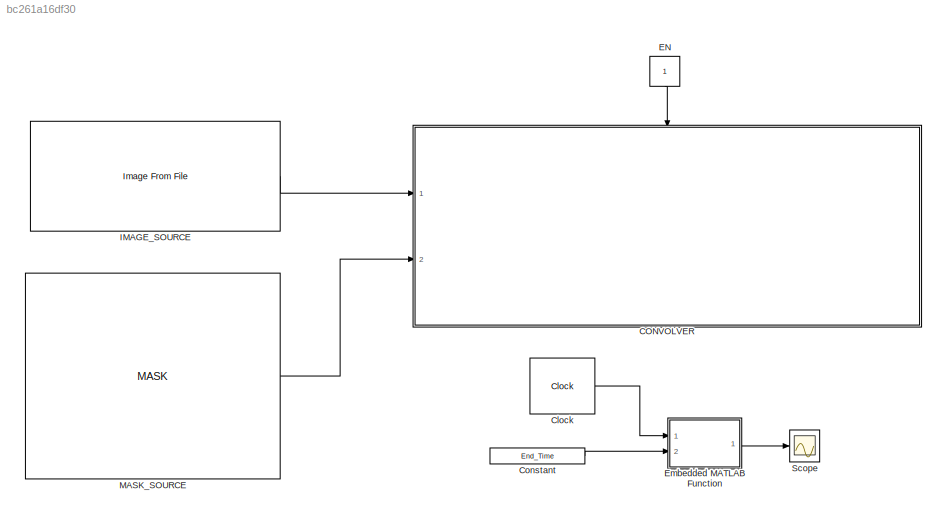
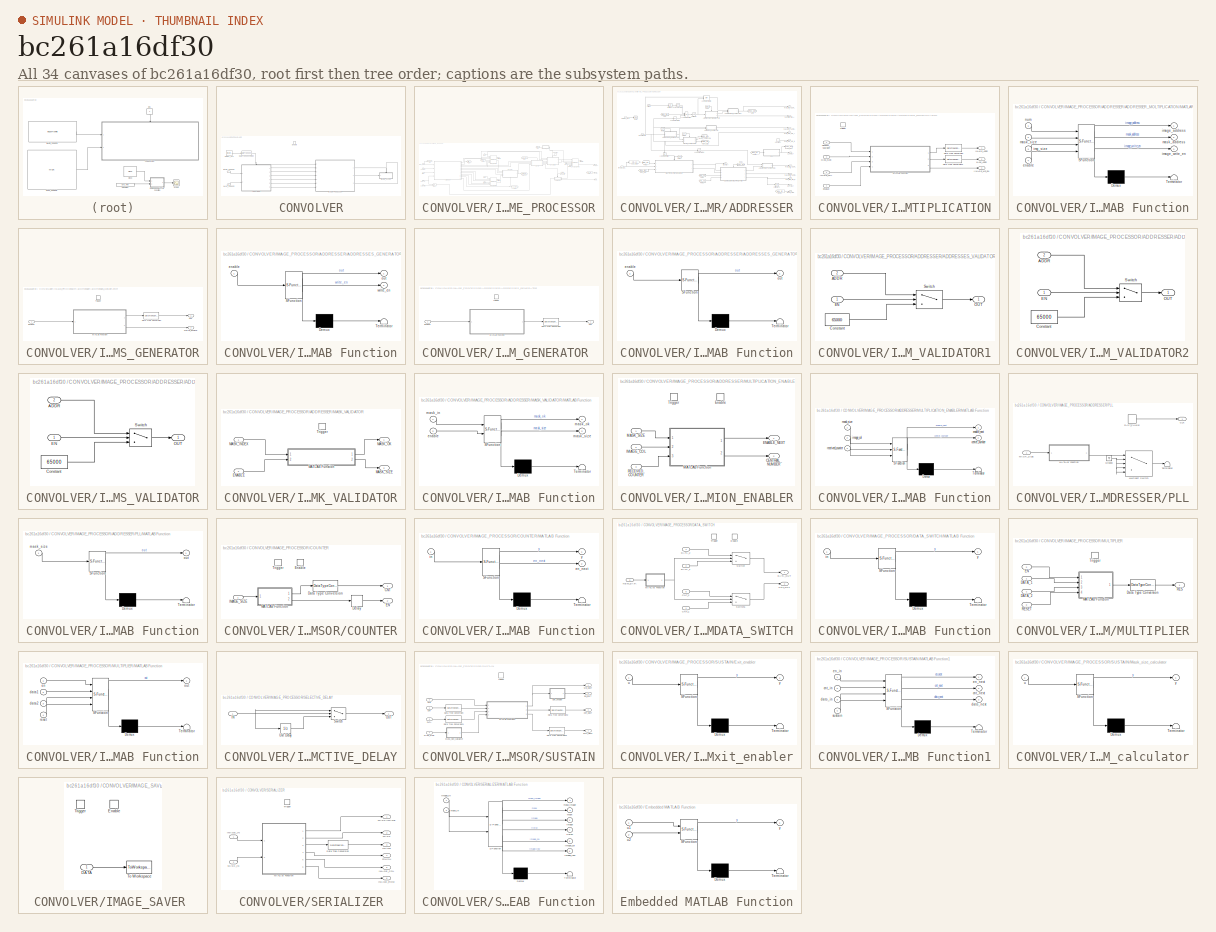
[diagram: thumbnail index - all 34 canvases of the model, root first then tree order]
MODEL slx_bc261a16df30
KIND model
CONFIG AbsTol = auto
CONFIG FixedStep = 1/100
CONFIG MaxStep = auto
CONFIG MinStep = auto
CONFIG RelTol = 1e-3
CONFIG SampleTimeConstraint = Unconstrained
CONFIG Solver = FixedStepDiscrete
CONFIG SolverMode = SingleTasking
CONFIG SolverName = FixedStepDiscrete
CONFIG StartTime = 0.0
CONFIG StopTime = 1500
BLOCK [SubSystem] CONVOLVER
  Ports = [2, 0, 1]
  RequestExecContextInheritance = off
  Variant = off
BLOCK [DataTypeConversion] CONVOLVER/Data Type Conversion
  OutDataTypeStr = boolean
  RndMeth = Floor
  SaturateOnIntegerOverflow = off
BLOCK [EnablePort] CONVOLVER/Enable
  Ports = []
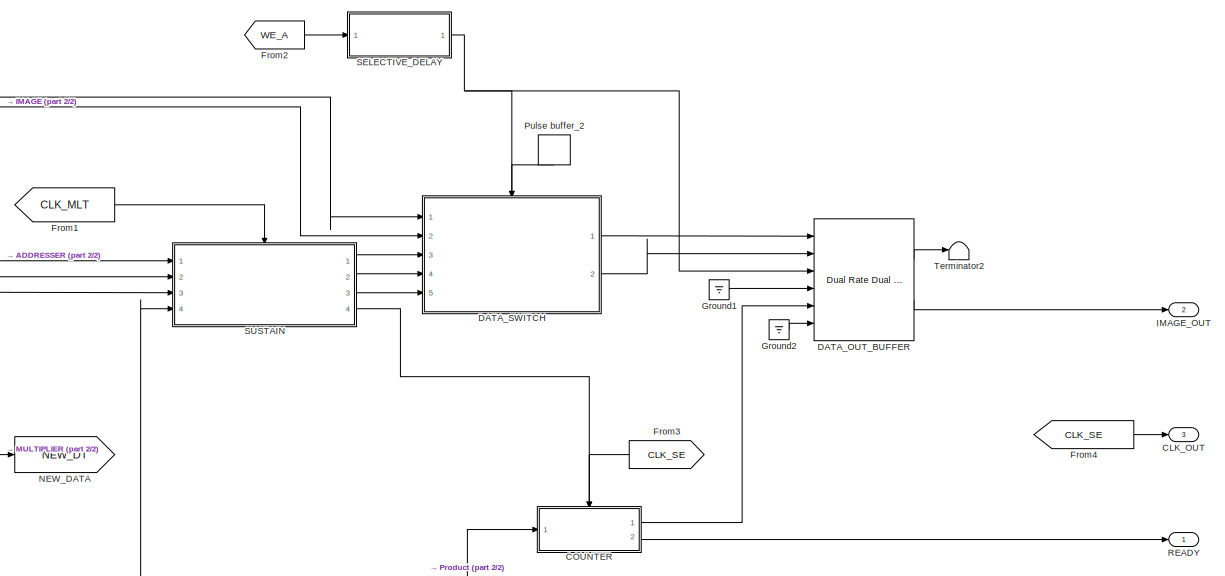
[diagram: CONVOLVER/IMAGE_PROCESSOR - part 1/2, middle right region]
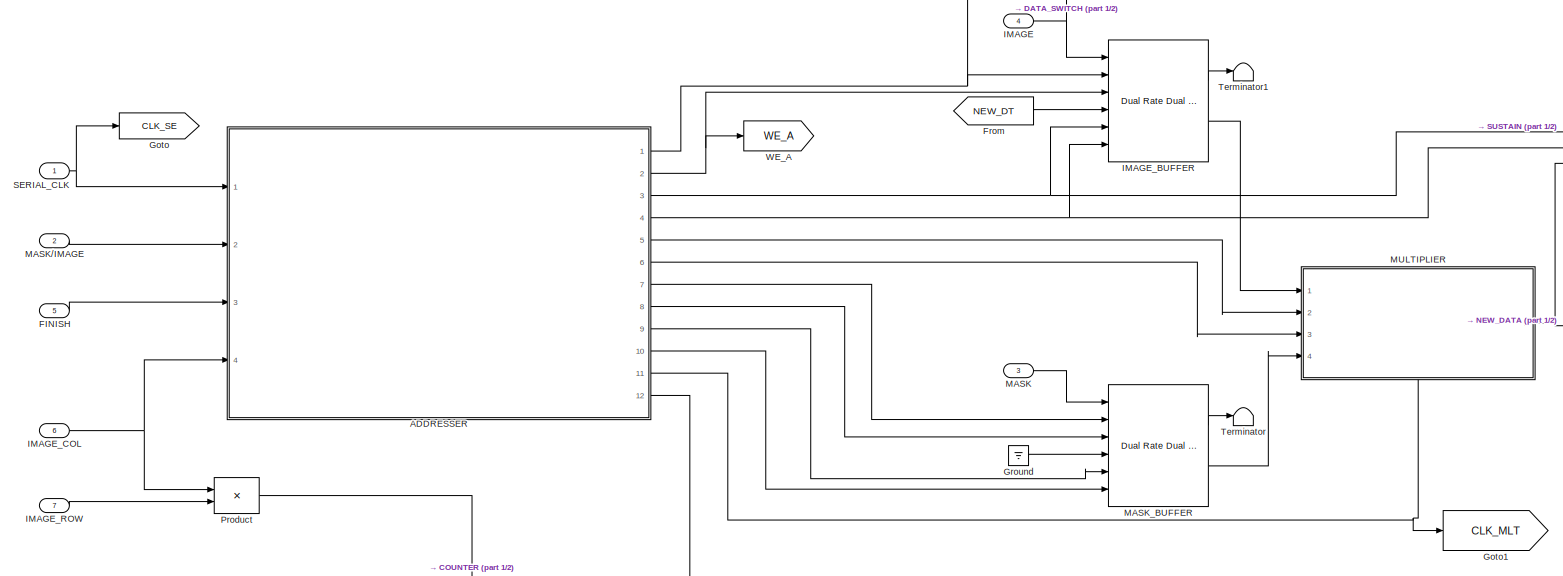
[diagram: CONVOLVER/IMAGE_PROCESSOR - part 2/2, middle left region]
BLOCK [SubSystem] CONVOLVER/IMAGE_PROCESSOR
  Ports = [7, 3]
  RequestExecContextInheritance = off
  Variant = off
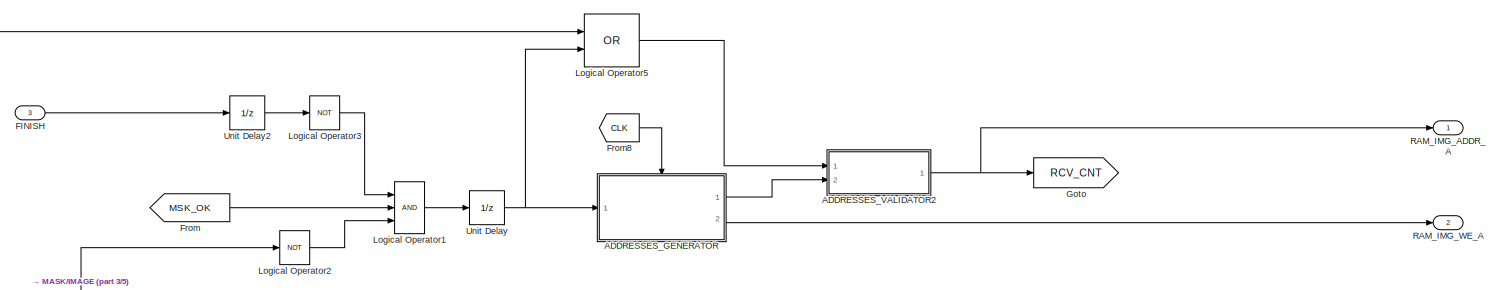
[diagram: CONVOLVER/IMAGE_PROCESSOR/ADDRESSER - part 1/5, full width, top band]
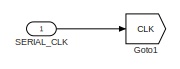
[diagram: CONVOLVER/IMAGE_PROCESSOR/ADDRESSER - part 2/5, top left region]
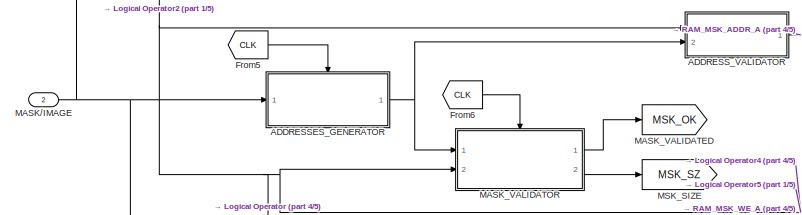
[diagram: CONVOLVER/IMAGE_PROCESSOR/ADDRESSER - part 3/5, central region]
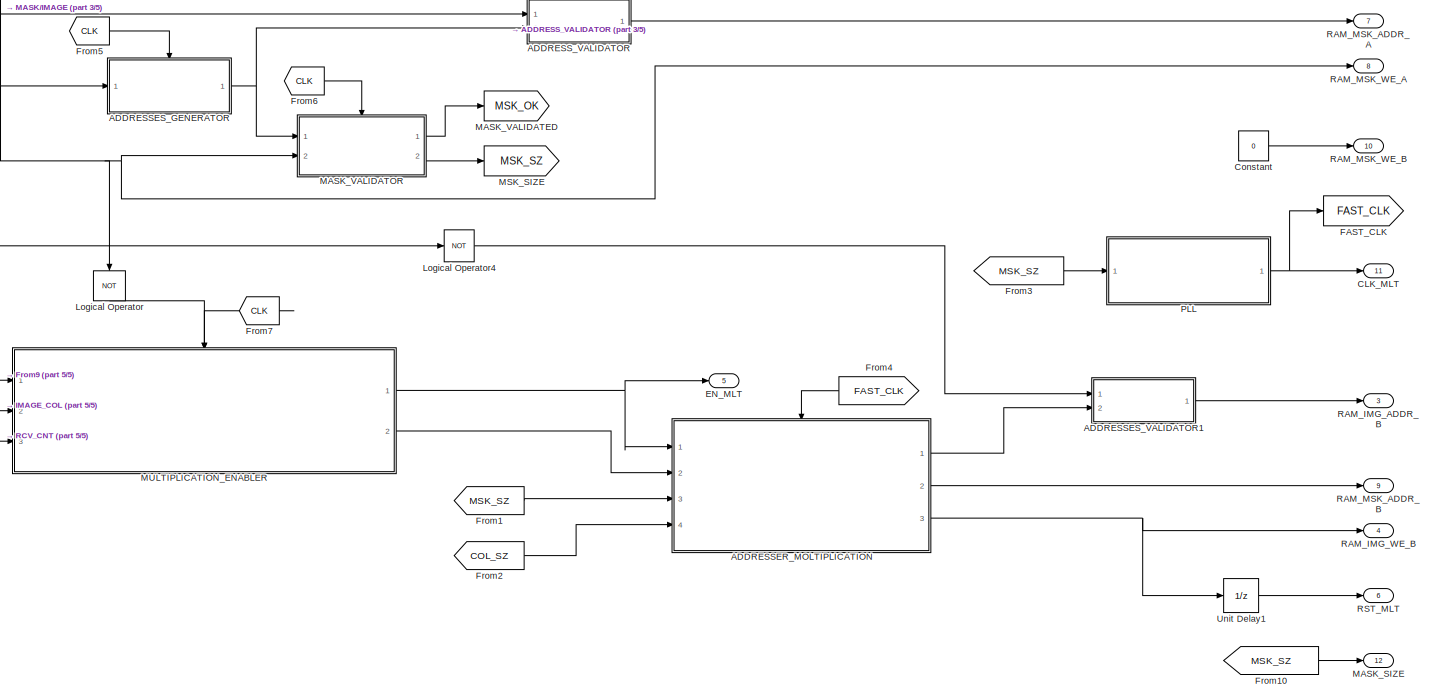
[diagram: CONVOLVER/IMAGE_PROCESSOR/ADDRESSER - part 4/5, full width, middle band]
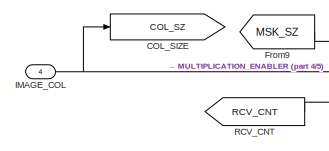
[diagram: CONVOLVER/IMAGE_PROCESSOR/ADDRESSER - part 5/5, bottom left region]
BLOCK [SubSystem] CONVOLVER/IMAGE_PROCESSOR/ADDRESSER
  Ports = [4, 12]
  RequestExecContextInheritance = off
  TreatAsAtomicUnit = on
  Variant = off
BLOCK [SubSystem] CONVOLVER/IMAGE_PROCESSOR/ADDRESSER/ADDRESSER_MOLTIPLICATION
  Ports = [4, 3, 0, 1]
  RequestExecContextInheritance = off
  TreatAsAtomicUnit = on
  Variant = off
BLOCK [Inport] CONVOLVER/IMAGE_PROCESSOR/ADDRESSER/ADDRESSER_MOLTIPLICATION/CENTRAL_NUMBER
  IconDisplay = Port number
  Port = 2
BLOCK [DataTypeConversion] CONVOLVER/IMAGE_PROCESSOR/ADDRESSER/ADDRESSER_MOLTIPLICATION/Data Type Conversion
  OutDataTypeStr = uint16
  RndMeth = Floor
  SaturateOnIntegerOverflow = off
BLOCK [DataTypeConversion] CONVOLVER/IMAGE_PROCESSOR/ADDRESSER/ADDRESSER_MOLTIPLICATION/Data Type Conversion1
  OutDataTypeStr = uint16
  RndMeth = Floor
  SaturateOnIntegerOverflow = off
BLOCK [Inport] CONVOLVER/IMAGE_PROCESSOR/ADDRESSER/ADDRESSER_MOLTIPLICATION/ENABLE
  IconDisplay = Port number
BLOCK [Outport] CONVOLVER/IMAGE_PROCESSOR/ADDRESSER/ADDRESSER_MOLTIPLICATION/IIMAGE_WR_EN
  IconDisplay = Port number
  Port = 3
BLOCK [Outport] CONVOLVER/IMAGE_PROCESSOR/ADDRESSER/ADDRESSER_MOLTIPLICATION/IMAGE_ADDR
  IconDisplay = Port number
BLOCK [Inport] CONVOLVER/IMAGE_PROCESSOR/ADDRESSER/ADDRESSER_MOLTIPLICATION/IMAGE_COL
  IconDisplay = Port number
  Port = 4
BLOCK [Outport] CONVOLVER/IMAGE_PROCESSOR/ADDRESSER/ADDRESSER_MOLTIPLICATION/MASK_ADDR
  IconDisplay = Port number
  Port = 2
BLOCK [Inport] CONVOLVER/IMAGE_PROCESSOR/ADDRESSER/ADDRESSER_MOLTIPLICATION/MASK_SIZE
  IconDisplay = Port number
  Port = 3
BLOCK [SubSystem] CONVOLVER/IMAGE_PROCESSOR/ADDRESSER/ADDRESSER_MOLTIPLICATION/MATLAB Function
  ErrorFcn = Stateflow.Translate.translate
  PermitHierarchicalResolution = ExplicitOnly
  Ports = [4, 3]
  RequestExecContextInheritance = off
  SFBlockType = MATLAB Function
  TreatAsAtomicUnit = on
  Variant = off
BLOCK [Demux] CONVOLVER/IMAGE_PROCESSOR/ADDRESSER/ADDRESSER_MOLTIPLICATION/MATLAB Function/ Demux 
  Outputs = 1
  Ports = [1, 1]
BLOCK [S-Function] CONVOLVER/IMAGE_PROCESSOR/ADDRESSER/ADDRESSER_MOLTIPLICATION/MATLAB Function/ SFunction 
  EnableBusSupport = on
  FunctionName = sf_sfun
  PortCounts = [4 4]
  Ports = [4, 4]
  SFunctionDeploymentMode = off
  Tag = Stateflow S-Function Progetto_1_0 1
BLOCK [Terminator] CONVOLVER/IMAGE_PROCESSOR/ADDRESSER/ADDRESSER_MOLTIPLICATION/MATLAB Function/ Terminator 
BLOCK [Inport] CONVOLVER/IMAGE_PROCESSOR/ADDRESSER/ADDRESSER_MOLTIPLICATION/MATLAB Function/enable
  IconDisplay = Port number
  Port = 4
BLOCK [Outport] CONVOLVER/IMAGE_PROCESSOR/ADDRESSER/ADDRESSER_MOLTIPLICATION/MATLAB Function/image_address
  IconDisplay = Port number
BLOCK [Outport] CONVOLVER/IMAGE_PROCESSOR/ADDRESSER/ADDRESSER_MOLTIPLICATION/MATLAB Function/image_write_en
  IconDisplay = Port number
  Port = 3
BLOCK [Inport] CONVOLVER/IMAGE_PROCESSOR/ADDRESSER/ADDRESSER_MOLTIPLICATION/MATLAB Function/img_size
  IconDisplay = Port number
  Port = 3
BLOCK [Outport] CONVOLVER/IMAGE_PROCESSOR/ADDRESSER/ADDRESSER_MOLTIPLICATION/MATLAB Function/mask_address
  IconDisplay = Port number
  Port = 2
BLOCK [Inport] CONVOLVER/IMAGE_PROCESSOR/ADDRESSER/ADDRESSER_MOLTIPLICATION/MATLAB Function/mask_size
  IconDisplay = Port number
  Port = 2
BLOCK [Inport] CONVOLVER/IMAGE_PROCESSOR/ADDRESSER/ADDRESSER_MOLTIPLICATION/MATLAB Function/num
  IconDisplay = Port number
BLOCK [TriggerPort] CONVOLVER/IMAGE_PROCESSOR/ADDRESSER/ADDRESSER_MOLTIPLICATION/Trigger
  Ports = []
  StatesWhenEnabling = held
BLOCK [SubSystem] CONVOLVER/IMAGE_PROCESSOR/ADDRESSER/ADDRESSES_GENERATOR
  Ports = [1, 2, 0, 1]
  RequestExecContextInheritance = off
  Variant = off
BLOCK [SubSystem] CONVOLVER/IMAGE_PROCESSOR/ADDRESSER/ADDRESSES_GENERATOR 
  Ports = [1, 1, 0, 1]
  RequestExecContextInheritance = off
  Variant = off
BLOCK [DataTypeConversion] CONVOLVER/IMAGE_PROCESSOR/ADDRESSER/ADDRESSES_GENERATOR /Data Type Conversion
  OutDataTypeStr = uint16
  RndMeth = Floor
  SaturateOnIntegerOverflow = off
BLOCK [Inport] CONVOLVER/IMAGE_PROCESSOR/ADDRESSER/ADDRESSES_GENERATOR /ENABLE
  IconDisplay = Port number
BLOCK [SubSystem] CONVOLVER/IMAGE_PROCESSOR/ADDRESSER/ADDRESSES_GENERATOR /MATLAB Function
  ErrorFcn = Stateflow.Translate.translate
  PermitHierarchicalResolution = ExplicitOnly
  Ports = [1, 1]
  RequestExecContextInheritance = off
  SFBlockType = MATLAB Function
  TreatAsAtomicUnit = on
  Variant = off
BLOCK [Demux] CONVOLVER/IMAGE_PROCESSOR/ADDRESSER/ADDRESSES_GENERATOR /MATLAB Function/ Demux 
  Outputs = 1
  Ports = [1, 1]
BLOCK [S-Function] CONVOLVER/IMAGE_PROCESSOR/ADDRESSER/ADDRESSES_GENERATOR /MATLAB Function/ SFunction 
  EnableBusSupport = on
  FunctionName = sf_sfun
  PortCounts = [1 2]
  Ports = [1, 2]
  SFunctionDeploymentMode = off
  Tag = Stateflow S-Function Progetto_1_0 4
BLOCK [Terminator] CONVOLVER/IMAGE_PROCESSOR/ADDRESSER/ADDRESSES_GENERATOR /MATLAB Function/ Terminator 
BLOCK [Inport] CONVOLVER/IMAGE_PROCESSOR/ADDRESSER/ADDRESSES_GENERATOR /MATLAB Function/enable
  IconDisplay = Port number
BLOCK [Outport] CONVOLVER/IMAGE_PROCESSOR/ADDRESSER/ADDRESSES_GENERATOR /MATLAB Function/out
  IconDisplay = Port number
BLOCK [Outport] CONVOLVER/IMAGE_PROCESSOR/ADDRESSER/ADDRESSES_GENERATOR /OUT
  IconDisplay = Port number
  OutDataTypeStr = uint16
BLOCK [TriggerPort] CONVOLVER/IMAGE_PROCESSOR/ADDRESSER/ADDRESSES_GENERATOR /Trigger
  PortDimensions = 1
  Ports = []
  StatesWhenEnabling = held
BLOCK [DataTypeConversion] CONVOLVER/IMAGE_PROCESSOR/ADDRESSER/ADDRESSES_GENERATOR/Data Type Conversion
  OutDataTypeStr = uint16
  RndMeth = Floor
  SaturateOnIntegerOverflow = off
BLOCK [Inport] CONVOLVER/IMAGE_PROCESSOR/ADDRESSER/ADDRESSES_GENERATOR/ENABLE
  IconDisplay = Port number
BLOCK [SubSystem] CONVOLVER/IMAGE_PROCESSOR/ADDRESSER/ADDRESSES_GENERATOR/MATLAB Function
  ErrorFcn = Stateflow.Translate.translate
  PermitHierarchicalResolution = ExplicitOnly
  Ports = [1, 2]
  RequestExecContextInheritance = off
  SFBlockType = MATLAB Function
  TreatAsAtomicUnit = on
  Variant = off
BLOCK [Demux] CONVOLVER/IMAGE_PROCESSOR/ADDRESSER/ADDRESSES_GENERATOR/MATLAB Function/ Demux 
  Outputs = 1
  Ports = [1, 1]
BLOCK [S-Function] CONVOLVER/IMAGE_PROCESSOR/ADDRESSER/ADDRESSES_GENERATOR/MATLAB Function/ SFunction 
  EnableBusSupport = on
  FunctionName = sf_sfun
  PortCounts = [1 3]
  Ports = [1, 3]
  SFunctionDeploymentMode = off
  Tag = Stateflow S-Function Progetto_1_0 3
BLOCK [Terminator] CONVOLVER/IMAGE_PROCESSOR/ADDRESSER/ADDRESSES_GENERATOR/MATLAB Function/ Terminator 
BLOCK [Inport] CONVOLVER/IMAGE_PROCESSOR/ADDRESSER/ADDRESSES_GENERATOR/MATLAB Function/enable
  IconDisplay = Port number
BLOCK [Outport] CONVOLVER/IMAGE_PROCESSOR/ADDRESSER/ADDRESSES_GENERATOR/MATLAB Function/out
  IconDisplay = Port number
BLOCK [Outport] CONVOLVER/IMAGE_PROCESSOR/ADDRESSER/ADDRESSES_GENERATOR/MATLAB Function/write_en
  IconDisplay = Port number
  Port = 2
BLOCK [Outport] CONVOLVER/IMAGE_PROCESSOR/ADDRESSER/ADDRESSES_GENERATOR/OUT
  IconDisplay = Port number
  OutDataTypeStr = uint16
BLOCK [TriggerPort] CONVOLVER/IMAGE_PROCESSOR/ADDRESSER/ADDRESSES_GENERATOR/Trigger
  PortDimensions = 1
  Ports = []
  StatesWhenEnabling = held
BLOCK [Outport] CONVOLVER/IMAGE_PROCESSOR/ADDRESSER/ADDRESSES_GENERATOR/WRITE_ENABLE
  IconDisplay = Port number
  OutDataTypeStr = boolean
  Port = 2
BLOCK [SubSystem] CONVOLVER/IMAGE_PROCESSOR/ADDRESSER/ADDRESSES_VALIDATOR1
  Ports = [2, 1]
  RequestExecContextInheritance = off
  Variant = off
BLOCK [Inport] CONVOLVER/IMAGE_PROCESSOR/ADDRESSER/ADDRESSES_VALIDATOR1/ADDR
  IconDisplay = Port number
  Port = 2
BLOCK [Constant] CONVOLVER/IMAGE_PROCESSOR/ADDRESSER/ADDRESSES_VALIDATOR1/Constant
  OutDataTypeStr = uint16
  Value = 65000
BLOCK [Inport] CONVOLVER/IMAGE_PROCESSOR/ADDRESSER/ADDRESSES_VALIDATOR1/EN
  IconDisplay = Port number
BLOCK [Outport] CONVOLVER/IMAGE_PROCESSOR/ADDRESSER/ADDRESSES_VALIDATOR1/OUT
  IconDisplay = Port number
  OutDataTypeStr = uint16
BLOCK [Switch] CONVOLVER/IMAGE_PROCESSOR/ADDRESSER/ADDRESSES_VALIDATOR1/Switch
  InputSameDT = off
  OutDataTypeStr = uint16
  SaturateOnIntegerOverflow = off
  Threshold = 1
BLOCK [SubSystem] CONVOLVER/IMAGE_PROCESSOR/ADDRESSER/ADDRESSES_VALIDATOR2
  Ports = [2, 1]
  RequestExecContextInheritance = off
  Variant = off
BLOCK [Inport] CONVOLVER/IMAGE_PROCESSOR/ADDRESSER/ADDRESSES_VALIDATOR2/ADDR
  IconDisplay = Port number
  Port = 2
BLOCK [Constant] CONVOLVER/IMAGE_PROCESSOR/ADDRESSER/ADDRESSES_VALIDATOR2/Constant
  OutDataTypeStr = uint16
  Value = 65000
BLOCK [Inport] CONVOLVER/IMAGE_PROCESSOR/ADDRESSER/ADDRESSES_VALIDATOR2/EN
  IconDisplay = Port number
BLOCK [Outport] CONVOLVER/IMAGE_PROCESSOR/ADDRESSER/ADDRESSES_VALIDATOR2/OUT
  IconDisplay = Port number
BLOCK [Switch] CONVOLVER/IMAGE_PROCESSOR/ADDRESSER/ADDRESSES_VALIDATOR2/Switch
  InputSameDT = off
  OutDataTypeStr = uint16
  SaturateOnIntegerOverflow = off
  Threshold = 1
BLOCK [SubSystem] CONVOLVER/IMAGE_PROCESSOR/ADDRESSER/ADDRESS_VALIDATOR
  Ports = [2, 1]
  RequestExecContextInheritance = off
  Variant = off
BLOCK [Inport] CONVOLVER/IMAGE_PROCESSOR/ADDRESSER/ADDRESS_VALIDATOR/ADDR
  IconDisplay = Port number
  Port = 2
BLOCK [Constant] CONVOLVER/IMAGE_PROCESSOR/ADDRESSER/ADDRESS_VALIDATOR/Constant
  OutDataTypeStr = uint16
  Value = 65000
BLOCK [Inport] CONVOLVER/IMAGE_PROCESSOR/ADDRESSER/ADDRESS_VALIDATOR/EN
  IconDisplay = Port number
BLOCK [Outport] CONVOLVER/IMAGE_PROCESSOR/ADDRESSER/ADDRESS_VALIDATOR/OUT
  IconDisplay = Port number
BLOCK [Switch] CONVOLVER/IMAGE_PROCESSOR/ADDRESSER/ADDRESS_VALIDATOR/Switch
  InputSameDT = off
  OutDataTypeStr = uint16
  SaturateOnIntegerOverflow = off
  Threshold = 1
BLOCK [Outport] CONVOLVER/IMAGE_PROCESSOR/ADDRESSER/CLK_MLT
  IconDisplay = Port number
  Port = 11
BLOCK [Goto] CONVOLVER/IMAGE_PROCESSOR/ADDRESSER/COL_SIZE
  GotoTag = COL_SZ
  IconDisplay = Tag and signal name
BLOCK [Constant] CONVOLVER/IMAGE_PROCESSOR/ADDRESSER/Constant
  OutDataTypeStr = boolean
  Value = 0
BLOCK [Outport] CONVOLVER/IMAGE_PROCESSOR/ADDRESSER/EN_MLT
  IconDisplay = Port number
  Port = 5
BLOCK [Goto] CONVOLVER/IMAGE_PROCESSOR/ADDRESSER/FAST_CLK
  GotoTag = FAST_CLK
BLOCK [Inport] CONVOLVER/IMAGE_PROCESSOR/ADDRESSER/FINISH
  IconDisplay = Port number
  Port = 3
BLOCK [From] CONVOLVER/IMAGE_PROCESSOR/ADDRESSER/From
  GotoTag = MSK_OK
BLOCK [From] CONVOLVER/IMAGE_PROCESSOR/ADDRESSER/From1
  GotoTag = MSK_SZ
BLOCK [From] CONVOLVER/IMAGE_PROCESSOR/ADDRESSER/From10
  GotoTag = MSK_SZ
BLOCK [From] CONVOLVER/IMAGE_PROCESSOR/ADDRESSER/From2
  GotoTag = COL_SZ
BLOCK [From] CONVOLVER/IMAGE_PROCESSOR/ADDRESSER/From3
  GotoTag = MSK_SZ
BLOCK [From] CONVOLVER/IMAGE_PROCESSOR/ADDRESSER/From4
  GotoTag = FAST_CLK
BLOCK [From] CONVOLVER/IMAGE_PROCESSOR/ADDRESSER/From5
  GotoTag = CLK
BLOCK [From] CONVOLVER/IMAGE_PROCESSOR/ADDRESSER/From6
  GotoTag = CLK
BLOCK [From] CONVOLVER/IMAGE_PROCESSOR/ADDRESSER/From7
  GotoTag = CLK
BLOCK [From] CONVOLVER/IMAGE_PROCESSOR/ADDRESSER/From8
  GotoTag = CLK
BLOCK [From] CONVOLVER/IMAGE_PROCESSOR/ADDRESSER/From9
  GotoTag = MSK_SZ
BLOCK [Goto] CONVOLVER/IMAGE_PROCESSOR/ADDRESSER/Goto
  GotoTag = RCV_CNT
BLOCK [Goto] CONVOLVER/IMAGE_PROCESSOR/ADDRESSER/Goto1
  GotoTag = CLK
BLOCK [Inport] CONVOLVER/IMAGE_PROCESSOR/ADDRESSER/IMAGE_COL
  IconDisplay = Port number
  OutDataTypeStr = double
  Port = 4
BLOCK [Logic] CONVOLVER/IMAGE_PROCESSOR/ADDRESSER/Logical Operator
  AllPortsSameDT = off
  Operator = NOT
  OutDataTypeStr = boolean
  Ports = [1, 1]
BLOCK [Logic] CONVOLVER/IMAGE_PROCESSOR/ADDRESSER/Logical Operator1
  AllPortsSameDT = off
  Inputs = 3
  OutDataTypeStr = boolean
  Ports = [3, 1]
BLOCK [Logic] CONVOLVER/IMAGE_PROCESSOR/ADDRESSER/Logical Operator2
  AllPortsSameDT = off
  Operator = NOT
  OutDataTypeStr = boolean
  Ports = [1, 1]
BLOCK [Logic] CONVOLVER/IMAGE_PROCESSOR/ADDRESSER/Logical Operator3
  AllPortsSameDT = off
  Operator = NOT
  OutDataTypeStr = boolean
  Ports = [1, 1]
BLOCK [Logic] CONVOLVER/IMAGE_PROCESSOR/ADDRESSER/Logical Operator4
  AllPortsSameDT = off
  Operator = NOT
  OutDataTypeStr = boolean
  Ports = [1, 1]
BLOCK [Logic] CONVOLVER/IMAGE_PROCESSOR/ADDRESSER/Logical Operator5
  AllPortsSameDT = off
  Operator = OR
  OutDataTypeStr = boolean
  Ports = [2, 1]
BLOCK [Inport] CONVOLVER/IMAGE_PROCESSOR/ADDRESSER/MASK//IMAGE
  IconDisplay = Port number
  Port = 2
BLOCK [Outport] CONVOLVER/IMAGE_PROCESSOR/ADDRESSER/MASK_SIZE
  IconDisplay = Port number
  Port = 12
BLOCK [Goto] CONVOLVER/IMAGE_PROCESSOR/ADDRESSER/MASK_VALIDATED
  GotoTag = MSK_OK
BLOCK [SubSystem] CONVOLVER/IMAGE_PROCESSOR/ADDRESSER/MASK_VALIDATOR
  Ports = [2, 2, 0, 1]
  RequestExecContextInheritance = off
  Variant = off
BLOCK [Inport] CONVOLVER/IMAGE_PROCESSOR/ADDRESSER/MASK_VALIDATOR/ENABLE
  IconDisplay = Port number
  Port = 2
BLOCK [Inport] CONVOLVER/IMAGE_PROCESSOR/ADDRESSER/MASK_VALIDATOR/MASK_INDEX
  IconDisplay = Port number
BLOCK [Outport] CONVOLVER/IMAGE_PROCESSOR/ADDRESSER/MASK_VALIDATOR/MASK_OK
  IconDisplay = Port number
BLOCK [Outport] CONVOLVER/IMAGE_PROCESSOR/ADDRESSER/MASK_VALIDATOR/MASK_SIZE
  IconDisplay = Port number
  Port = 2
BLOCK [SubSystem] CONVOLVER/IMAGE_PROCESSOR/ADDRESSER/MASK_VALIDATOR/MATLAB Function
  ErrorFcn = Stateflow.Translate.translate
  PermitHierarchicalResolution = ExplicitOnly
  Ports = [2, 2]
  RequestExecContextInheritance = off
  SFBlockType = MATLAB Function
  TreatAsAtomicUnit = on
  Variant = off
BLOCK [Demux] CONVOLVER/IMAGE_PROCESSOR/ADDRESSER/MASK_VALIDATOR/MATLAB Function/ Demux 
  Outputs = 1
  Ports = [1, 1]
BLOCK [S-Function] CONVOLVER/IMAGE_PROCESSOR/ADDRESSER/MASK_VALIDATOR/MATLAB Function/ SFunction 
  EnableBusSupport = on
  FunctionName = sf_sfun
  PortCounts = [2 3]
  Ports = [2, 3]
  SFunctionDeploymentMode = off
  Tag = Stateflow S-Function Progetto_1_0 10
BLOCK [Terminator] CONVOLVER/IMAGE_PROCESSOR/ADDRESSER/MASK_VALIDATOR/MATLAB Function/ Terminator 
BLOCK [Inport] CONVOLVER/IMAGE_PROCESSOR/ADDRESSER/MASK_VALIDATOR/MATLAB Function/enable
  IconDisplay = Port number
  Port = 2
BLOCK [Inport] CONVOLVER/IMAGE_PROCESSOR/ADDRESSER/MASK_VALIDATOR/MATLAB Function/mask_in
  IconDisplay = Port number
BLOCK [Outport] CONVOLVER/IMAGE_PROCESSOR/ADDRESSER/MASK_VALIDATOR/MATLAB Function/mask_ok
  IconDisplay = Port number
BLOCK [Outport] CONVOLVER/IMAGE_PROCESSOR/ADDRESSER/MASK_VALIDATOR/MATLAB Function/mask_size
  IconDisplay = Port number
  Port = 2
BLOCK [TriggerPort] CONVOLVER/IMAGE_PROCESSOR/ADDRESSER/MASK_VALIDATOR/Trigger
  PortDimensions = 1
  Ports = []
  StatesWhenEnabling = held
BLOCK [Goto] CONVOLVER/IMAGE_PROCESSOR/ADDRESSER/MSK_SIZE
  GotoTag = MSK_SZ
BLOCK [SubSystem] CONVOLVER/IMAGE_PROCESSOR/ADDRESSER/MULTIPLICATION_ENABLER
  Ports = [3, 2, 1, 1]
  RequestExecContextInheritance = off
  TreatAsAtomicUnit = on
  Variant = off
BLOCK [Outport] CONVOLVER/IMAGE_PROCESSOR/ADDRESSER/MULTIPLICATION_ENABLER/CENTRAL_NUMBER
  IconDisplay = Port number
  Port = 2
BLOCK [Outport] CONVOLVER/IMAGE_PROCESSOR/ADDRESSER/MULTIPLICATION_ENABLER/ENABLE_NEXT 
  IconDisplay = Port number
BLOCK [EnablePort] CONVOLVER/IMAGE_PROCESSOR/ADDRESSER/MULTIPLICATION_ENABLER/Enable
  Ports = []
BLOCK [Inport] CONVOLVER/IMAGE_PROCESSOR/ADDRESSER/MULTIPLICATION_ENABLER/IMAGE_COL
  IconDisplay = Port number
  Port = 2
BLOCK [Inport] CONVOLVER/IMAGE_PROCESSOR/ADDRESSER/MULTIPLICATION_ENABLER/MASK_SIZE
  IconDisplay = Port number
BLOCK [SubSystem] CONVOLVER/IMAGE_PROCESSOR/ADDRESSER/MULTIPLICATION_ENABLER/MATLAB Function
  ErrorFcn = Stateflow.Translate.translate
  PermitHierarchicalResolution = ExplicitOnly
  Ports = [3, 2]
  RequestExecContextInheritance = off
  SFBlockType = MATLAB Function
  TreatAsAtomicUnit = on
  Variant = off
BLOCK [Demux] CONVOLVER/IMAGE_PROCESSOR/ADDRESSER/MULTIPLICATION_ENABLER/MATLAB Function/ Demux 
  Outputs = 1
  Ports = [1, 1]
BLOCK [S-Function] CONVOLVER/IMAGE_PROCESSOR/ADDRESSER/MULTIPLICATION_ENABLER/MATLAB Function/ SFunction 
  EnableBusSupport = on
  FunctionName = sf_sfun
  PortCounts = [3 3]
  Ports = [3, 3]
  SFunctionDeploymentMode = off
  Tag = Stateflow S-Function Progetto_1_0 5
BLOCK [Terminator] CONVOLVER/IMAGE_PROCESSOR/ADDRESSER/MULTIPLICATION_ENABLER/MATLAB Function/ Terminator 
BLOCK [Outport] CONVOLVER/IMAGE_PROCESSOR/ADDRESSER/MULTIPLICATION_ENABLER/MATLAB Function/center_number
  IconDisplay = Port number
  Port = 2
BLOCK [Outport] CONVOLVER/IMAGE_PROCESSOR/ADDRESSER/MULTIPLICATION_ENABLER/MATLAB Function/enable_next
  IconDisplay = Port number
BLOCK [Inport] CONVOLVER/IMAGE_PROCESSOR/ADDRESSER/MULTIPLICATION_ENABLER/MATLAB Function/image_col
  IconDisplay = Port number
  Port = 2
BLOCK [Inport] CONVOLVER/IMAGE_PROCESSOR/ADDRESSER/MULTIPLICATION_ENABLER/MATLAB Function/mask_size
  IconDisplay = Port number
BLOCK [Inport] CONVOLVER/IMAGE_PROCESSOR/ADDRESSER/MULTIPLICATION_ENABLER/MATLAB Function/received_counter
  IconDisplay = Port number
  Port = 3
BLOCK [Inport] CONVOLVER/IMAGE_PROCESSOR/ADDRESSER/MULTIPLICATION_ENABLER/RECEIVED_COUNTER
  IconDisplay = Port number
  Port = 3
BLOCK [TriggerPort] CONVOLVER/IMAGE_PROCESSOR/ADDRESSER/MULTIPLICATION_ENABLER/Trigger
  Ports = []
  StatesWhenEnabling = held
BLOCK [SubSystem] CONVOLVER/IMAGE_PROCESSOR/ADDRESSER/PLL
  Ports = [1, 1]
  RequestExecContextInheritance = off
  TreatAsAtomicUnit = on
  Variant = off
BLOCK [Outport] CONVOLVER/IMAGE_PROCESSOR/ADDRESSER/PLL/CLK
  IconDisplay = Port number
BLOCK [DiscretePulseGenerator] CONVOLVER/IMAGE_PROCESSOR/ADDRESSER/PLL/FAST_PULSE
  Period = 1/50
  Ports = [0, 1]
  PulseType = Time based
  PulseWidth = 50
BLOCK [Ground] CONVOLVER/IMAGE_PROCESSOR/ADDRESSER/PLL/Ground
BLOCK [Inport] CONVOLVER/IMAGE_PROCESSOR/ADDRESSER/PLL/MASK_SIZE
  IconDisplay = Port number
BLOCK [SubSystem] CONVOLVER/IMAGE_PROCESSOR/ADDRESSER/PLL/MATLAB Function
  ErrorFcn = Stateflow.Translate.translate
  PermitHierarchicalResolution = ExplicitOnly
  Ports = [1, 1]
  RequestExecContextInheritance = off
  SFBlockType = MATLAB Function
  TreatAsAtomicUnit = on
  Variant = off
BLOCK [Demux] CONVOLVER/IMAGE_PROCESSOR/ADDRESSER/PLL/MATLAB Function/ Demux 
  Outputs = 1
  Ports = [1, 1]
BLOCK [S-Function] CONVOLVER/IMAGE_PROCESSOR/ADDRESSER/PLL/MATLAB Function/ SFunction 
  EnableBusSupport = on
  FunctionName = sf_sfun
  PortCounts = [1 2]
  Ports = [1, 2]
  SFunctionDeploymentMode = off
  Tag = Stateflow S-Function Progetto_1_0 7
BLOCK [Terminator] CONVOLVER/IMAGE_PROCESSOR/ADDRESSER/PLL/MATLAB Function/ Terminator 
BLOCK [Inport] CONVOLVER/IMAGE_PROCESSOR/ADDRESSER/PLL/MATLAB Function/mask_size
  IconDisplay = Port number
BLOCK [Outport] CONVOLVER/IMAGE_PROCESSOR/ADDRESSER/PLL/MATLAB Function/out
  IconDisplay = Port number
BLOCK [MultiPortSwitch] CONVOLVER/IMAGE_PROCESSOR/ADDRESSER/PLL/Multiport Switch
  InputSameDT = off
  Inputs = 4
  Ports = [5, 1]
  SaturateOnIntegerOverflow = off
BLOCK [Terminator] CONVOLVER/IMAGE_PROCESSOR/ADDRESSER/PLL/Terminator
BLOCK [Outport] CONVOLVER/IMAGE_PROCESSOR/ADDRESSER/RAM_IMG_ADDR_A
  IconDisplay = Port number
BLOCK [Outport] CONVOLVER/IMAGE_PROCESSOR/ADDRESSER/RAM_IMG_ADDR_B
  IconDisplay = Port number
  Port = 3
BLOCK [Outport] CONVOLVER/IMAGE_PROCESSOR/ADDRESSER/RAM_IMG_WE_A 
  IconDisplay = Port number
  Port = 2
BLOCK [Outport] CONVOLVER/IMAGE_PROCESSOR/ADDRESSER/RAM_IMG_WE_B
  IconDisplay = Port number
  Port = 4
BLOCK [Outport] CONVOLVER/IMAGE_PROCESSOR/ADDRESSER/RAM_MSK_ADDR_A
  IconDisplay = Port number
  OutDataTypeStr = uint16
  Port = 7
BLOCK [Outport] CONVOLVER/IMAGE_PROCESSOR/ADDRESSER/RAM_MSK_ADDR_B
  IconDisplay = Port number
  Port = 9
BLOCK [Outport] CONVOLVER/IMAGE_PROCESSOR/ADDRESSER/RAM_MSK_WE_A 
  IconDisplay = Port number
  Port = 8
BLOCK [Outport] CONVOLVER/IMAGE_PROCESSOR/ADDRESSER/RAM_MSK_WE_B
  IconDisplay = Port number
  Port = 10
BLOCK [From] CONVOLVER/IMAGE_PROCESSOR/ADDRESSER/RCV_CNT
  GotoTag = RCV_CNT
BLOCK [Outport] CONVOLVER/IMAGE_PROCESSOR/ADDRESSER/RST_MLT
  IconDisplay = Port number
  Port = 6
BLOCK [Inport] CONVOLVER/IMAGE_PROCESSOR/ADDRESSER/SERIAL_CLK
  IconDisplay = Port number
BLOCK [UnitDelay] CONVOLVER/IMAGE_PROCESSOR/ADDRESSER/Unit Delay
  InputProcessing = Elements as channels (sample based)
  SampleTime = -1
BLOCK [UnitDelay] CONVOLVER/IMAGE_PROCESSOR/ADDRESSER/Unit Delay1
  InputProcessing = Elements as channels (sample based)
  SampleTime = -1
BLOCK [UnitDelay] CONVOLVER/IMAGE_PROCESSOR/ADDRESSER/Unit Delay2
  InputProcessing = Elements as channels (sample based)
  SampleTime = -1
BLOCK [Outport] CONVOLVER/IMAGE_PROCESSOR/CLK_OUT
  IconDisplay = Port number
  Port = 3
BLOCK [SubSystem] CONVOLVER/IMAGE_PROCESSOR/COUNTER
  Ports = [1, 2, 1, 1]
  RequestExecContextInheritance = off
  TreatAsAtomicUnit = on
  Variant = off
BLOCK [Outport] CONVOLVER/IMAGE_PROCESSOR/COUNTER/CNT
  IconDisplay = Port number
BLOCK [DataTypeConversion] CONVOLVER/IMAGE_PROCESSOR/COUNTER/Data Type Conversion
  OutDataTypeStr = uint16
  RndMeth = Floor
  SaturateOnIntegerOverflow = off
BLOCK [Delay] CONVOLVER/IMAGE_PROCESSOR/COUNTER/Delay
  DelayLength = 1
  InitialCondition = 0
  InputPortMap = u0
  Ports = [1, 1]
BLOCK [Outport] CONVOLVER/IMAGE_PROCESSOR/COUNTER/EN
  IconDisplay = Port number
  Port = 2
BLOCK [EnablePort] CONVOLVER/IMAGE_PROCESSOR/COUNTER/Enable
  Ports = []
BLOCK [Inport] CONVOLVER/IMAGE_PROCESSOR/COUNTER/IMAGE_SIZE
  IconDisplay = Port number
BLOCK [SubSystem] CONVOLVER/IMAGE_PROCESSOR/COUNTER/MATLAB Function
  ErrorFcn = Stateflow.Translate.translate
  PermitHierarchicalResolution = ExplicitOnly
  Ports = [1, 2]
  RequestExecContextInheritance = off
  SFBlockType = MATLAB Function
  TreatAsAtomicUnit = on
  Variant = off
BLOCK [Demux] CONVOLVER/IMAGE_PROCESSOR/COUNTER/MATLAB Function/ Demux 
  Outputs = 1
  Ports = [1, 1]
BLOCK [S-Function] CONVOLVER/IMAGE_PROCESSOR/COUNTER/MATLAB Function/ SFunction 
  EnableBusSupport = on
  FunctionName = sf_sfun
  PortCounts = [1 3]
  Ports = [1, 3]
  SFunctionDeploymentMode = off
  Tag = Stateflow S-Function Progetto_1_0 9
BLOCK [Terminator] CONVOLVER/IMAGE_PROCESSOR/COUNTER/MATLAB Function/ Terminator 
BLOCK [Outport] CONVOLVER/IMAGE_PROCESSOR/COUNTER/MATLAB Function/en_next
  IconDisplay = Port number
  Port = 2
BLOCK [Inport] CONVOLVER/IMAGE_PROCESSOR/COUNTER/MATLAB Function/in
  IconDisplay = Port number
BLOCK [Outport] CONVOLVER/IMAGE_PROCESSOR/COUNTER/MATLAB Function/y
  IconDisplay = Port number
BLOCK [TriggerPort] CONVOLVER/IMAGE_PROCESSOR/COUNTER/Trigger
  Ports = []
  StatesWhenEnabling = held
BLOCK [Reference] CONVOLVER/IMAGE_PROCESSOR/DATA_OUT_BUFFER  REF=hdlsllib/HDL Operations/Dual Rate Dual Port RAM
  Ports = [6, 2]
  SourceBlock = hdlsllib/HDL Operations/Dual Rate Dual Port RAM
  SourceType = Dual-rate dual-port RAM
BLOCK [SubSystem] CONVOLVER/IMAGE_PROCESSOR/DATA_SWITCH
  Ports = [5, 2, 1, 1]
  RequestExecContextInheritance = off
  TreatAsAtomicUnit = on
  Variant = off
BLOCK [Inport] CONVOLVER/IMAGE_PROCESSOR/DATA_SWITCH/CNT_1
  IconDisplay = Port number
BLOCK [Inport] CONVOLVER/IMAGE_PROCESSOR/DATA_SWITCH/CNT_2
  IconDisplay = Port number
  Port = 5
BLOCK [Outport] CONVOLVER/IMAGE_PROCESSOR/DATA_SWITCH/CNT_OUT
  IconDisplay = Port number
  Port = 2
BLOCK [Inport] CONVOLVER/IMAGE_PROCESSOR/DATA_SWITCH/DATA_1
  IconDisplay = Port number
  Port = 2
BLOCK [Inport] CONVOLVER/IMAGE_PROCESSOR/DATA_SWITCH/DATA_2
  IconDisplay = Port number
  Port = 4
BLOCK [Outport] CONVOLVER/IMAGE_PROCESSOR/DATA_SWITCH/DATA_OUT
  IconDisplay = Port number
BLOCK [EnablePort] CONVOLVER/IMAGE_PROCESSOR/DATA_SWITCH/Enable
  Ports = []
BLOCK [SubSystem] CONVOLVER/IMAGE_PROCESSOR/DATA_SWITCH/MATLAB Function
  ErrorFcn = Stateflow.Translate.translate
  PermitHierarchicalResolution = ExplicitOnly
  Ports = [1, 1]
  RequestExecContextInheritance = off
  SFBlockType = MATLAB Function
  TreatAsAtomicUnit = on
  Variant = off
BLOCK [Demux] CONVOLVER/IMAGE_PROCESSOR/DATA_SWITCH/MATLAB Function/ Demux 
  Outputs = 1
  Ports = [1, 1]
BLOCK [S-Function] CONVOLVER/IMAGE_PROCESSOR/DATA_SWITCH/MATLAB Function/ SFunction 
  EnableBusSupport = on
  FunctionName = sf_sfun
  PortCounts = [1 2]
  Ports = [1, 2]
  SFunctionDeploymentMode = off
  Tag = Stateflow S-Function Progetto_1_0 11
BLOCK [Terminator] CONVOLVER/IMAGE_PROCESSOR/DATA_SWITCH/MATLAB Function/ Terminator 
BLOCK [Inport] CONVOLVER/IMAGE_PROCESSOR/DATA_SWITCH/MATLAB Function/in
  IconDisplay = Port number
BLOCK [Outport] CONVOLVER/IMAGE_PROCESSOR/DATA_SWITCH/MATLAB Function/y
  IconDisplay = Port number
BLOCK [Inport] CONVOLVER/IMAGE_PROCESSOR/DATA_SWITCH/NEW_DATA
  IconDisplay = Port number
  Port = 3
BLOCK [Switch] CONVOLVER/IMAGE_PROCESSOR/DATA_SWITCH/Switch
  InputSameDT = off
  SaturateOnIntegerOverflow = off
  Threshold = 1
BLOCK [Switch] CONVOLVER/IMAGE_PROCESSOR/DATA_SWITCH/Switch1
  InputSameDT = off
  SaturateOnIntegerOverflow = off
  Threshold = 1
BLOCK [TriggerPort] CONVOLVER/IMAGE_PROCESSOR/DATA_SWITCH/Trigger
  Ports = []
  StatesWhenEnabling = held
BLOCK [Inport] CONVOLVER/IMAGE_PROCESSOR/FINISH
  IconDisplay = Port number
  OutDataTypeStr = boolean
  Port = 5
BLOCK [From] CONVOLVER/IMAGE_PROCESSOR/From
  GotoTag = NEW_DT
  IconDisplay = Signal name
BLOCK [From] CONVOLVER/IMAGE_PROCESSOR/From1
  GotoTag = CLK_MLT
BLOCK [From] CONVOLVER/IMAGE_PROCESSOR/From2
  GotoTag = WE_A
BLOCK [From] CONVOLVER/IMAGE_PROCESSOR/From3
  GotoTag = CLK_SE
BLOCK [From] CONVOLVER/IMAGE_PROCESSOR/From4
  GotoTag = CLK_SE
BLOCK [Goto] CONVOLVER/IMAGE_PROCESSOR/Goto
  GotoTag = CLK_SE
  IconDisplay = Signal name
BLOCK [Goto] CONVOLVER/IMAGE_PROCESSOR/Goto1
  GotoTag = CLK_MLT
BLOCK [Ground] CONVOLVER/IMAGE_PROCESSOR/Ground
BLOCK [Ground] CONVOLVER/IMAGE_PROCESSOR/Ground1
BLOCK [Ground] CONVOLVER/IMAGE_PROCESSOR/Ground2
BLOCK [Inport] CONVOLVER/IMAGE_PROCESSOR/IMAGE
  IconDisplay = Port number
  OutDataTypeStr = uint8
  Port = 4
BLOCK [Reference] CONVOLVER/IMAGE_PROCESSOR/IMAGE_BUFFER  REF=hdlsllib/HDL Operations/Dual Rate Dual Port RAM
  Ports = [6, 2]
  SourceBlock = hdlsllib/HDL Operations/Dual Rate Dual Port RAM
  SourceType = Dual-rate dual-port RAM
BLOCK [Inport] CONVOLVER/IMAGE_PROCESSOR/IMAGE_COL
  IconDisplay = Port number
  OutDataTypeStr = double
  Port = 6
BLOCK [Outport] CONVOLVER/IMAGE_PROCESSOR/IMAGE_OUT
  IconDisplay = Port number
  Port = 2
BLOCK [Inport] CONVOLVER/IMAGE_PROCESSOR/IMAGE_ROW
  IconDisplay = Port number
  OutDataTypeStr = double
  Port = 7
BLOCK [Inport] CONVOLVER/IMAGE_PROCESSOR/MASK
  IconDisplay = Port number
  OutDataTypeStr = double
  Port = 3
BLOCK [Inport] CONVOLVER/IMAGE_PROCESSOR/MASK//IMAGE
  IconDisplay = Port number
  OutDataTypeStr = boolean
  Port = 2
BLOCK [Reference] CONVOLVER/IMAGE_PROCESSOR/MASK_BUFFER  REF=hdlsllib/HDL Operations/Dual Rate Dual Port RAM
  Ports = [6, 2]
  SourceBlock = hdlsllib/HDL Operations/Dual Rate Dual Port RAM
  SourceType = Dual-rate dual-port RAM
BLOCK [SubSystem] CONVOLVER/IMAGE_PROCESSOR/MULTIPLIER
  Ports = [4, 1, 0, 1]
  RequestExecContextInheritance = off
  Variant = off
BLOCK [Inport] CONVOLVER/IMAGE_PROCESSOR/MULTIPLIER/DATA_1
  IconDisplay = Port number
BLOCK [Inport] CONVOLVER/IMAGE_PROCESSOR/MULTIPLIER/DATA_2
  IconDisplay = Port number
  Port = 4
BLOCK [DataTypeConversion] CONVOLVER/IMAGE_PROCESSOR/MULTIPLIER/Data Type Conversion
  OutDataTypeStr = uint8
  RndMeth = Floor
  SaturateOnIntegerOverflow = off
BLOCK [Inport] CONVOLVER/IMAGE_PROCESSOR/MULTIPLIER/EN
  IconDisplay = Port number
  Port = 2
BLOCK [SubSystem] CONVOLVER/IMAGE_PROCESSOR/MULTIPLIER/MATLAB Function
  ErrorFcn = Stateflow.Translate.translate
  PermitHierarchicalResolution = ExplicitOnly
  Ports = [4, 1]
  RequestExecContextInheritance = off
  SFBlockType = MATLAB Function
  TreatAsAtomicUnit = on
  Variant = off
BLOCK [Demux] CONVOLVER/IMAGE_PROCESSOR/MULTIPLIER/MATLAB Function/ Demux 
  Outputs = 1
  Ports = [1, 1]
BLOCK [S-Function] CONVOLVER/IMAGE_PROCESSOR/MULTIPLIER/MATLAB Function/ SFunction 
  EnableBusSupport = on
  FunctionName = sf_sfun
  PortCounts = [4 2]
  Ports = [4, 2]
  SFunctionDeploymentMode = off
  Tag = Stateflow S-Function Progetto_1_0 8
BLOCK [Terminator] CONVOLVER/IMAGE_PROCESSOR/MULTIPLIER/MATLAB Function/ Terminator 
BLOCK [Inport] CONVOLVER/IMAGE_PROCESSOR/MULTIPLIER/MATLAB Function/data1
  IconDisplay = Port number
  Port = 2
BLOCK [Inport] CONVOLVER/IMAGE_PROCESSOR/MULTIPLIER/MATLAB Function/data2
  IconDisplay = Port number
  Port = 3
BLOCK [Inport] CONVOLVER/IMAGE_PROCESSOR/MULTIPLIER/MATLAB Function/en
  IconDisplay = Port number
BLOCK [Outport] CONVOLVER/IMAGE_PROCESSOR/MULTIPLIER/MATLAB Function/out
  IconDisplay = Port number
BLOCK [Inport] CONVOLVER/IMAGE_PROCESSOR/MULTIPLIER/MATLAB Function/reset
  IconDisplay = Port number
  Port = 4
BLOCK [Outport] CONVOLVER/IMAGE_PROCESSOR/MULTIPLIER/RES
  IconDisplay = Port number
BLOCK [Inport] CONVOLVER/IMAGE_PROCESSOR/MULTIPLIER/RESET
  IconDisplay = Port number
  Port = 3
BLOCK [TriggerPort] CONVOLVER/IMAGE_PROCESSOR/MULTIPLIER/Trigger
  PortDimensions = 1
  Ports = []
  StatesWhenEnabling = held
BLOCK [Goto] CONVOLVER/IMAGE_PROCESSOR/NEW_DATA
  GotoTag = NEW_DT
BLOCK [Product] CONVOLVER/IMAGE_PROCESSOR/Product
  InputSameDT = off
  OutDataTypeStr = Inherit: Inherit via internal rule
  Ports = [2, 1]
  RndMeth = Floor
  SaturateOnIntegerOverflow = off
BLOCK [DiscretePulseGenerator] CONVOLVER/IMAGE_PROCESSOR/Pulse buffer_2 
  Period = 1/2
  Ports = [0, 1]
  PulseType = Time based
  PulseWidth = 50
BLOCK [Outport] CONVOLVER/IMAGE_PROCESSOR/READY
  IconDisplay = Port number
BLOCK [SubSystem] CONVOLVER/IMAGE_PROCESSOR/SELECTIVE_DELAY
  Ports = [1, 1]
  RequestExecContextInheritance = off
  Variant = off
BLOCK [Inport] CONVOLVER/IMAGE_PROCESSOR/SELECTIVE_DELAY/IN
  IconDisplay = Port number
BLOCK [Outport] CONVOLVER/IMAGE_PROCESSOR/SELECTIVE_DELAY/OUT
  IconDisplay = Port number
BLOCK [Switch] CONVOLVER/IMAGE_PROCESSOR/SELECTIVE_DELAY/Switch
  InputSameDT = off
  SaturateOnIntegerOverflow = off
  Threshold = 1
BLOCK [UnitDelay] CONVOLVER/IMAGE_PROCESSOR/SELECTIVE_DELAY/Unit Delay
  InputProcessing = Elements as channels (sample based)
  SampleTime = -1
BLOCK [Inport] CONVOLVER/IMAGE_PROCESSOR/SERIAL_CLK
  IconDisplay = Port number
  OutDataTypeStr = boolean
BLOCK [SubSystem] CONVOLVER/IMAGE_PROCESSOR/SUSTAIN
  Ports = [4, 4, 0, 1]
  RequestExecContextInheritance = off
  TreatAsAtomicUnit = on
  Variant = off
BLOCK [Inport] CONVOLVER/IMAGE_PROCESSOR/SUSTAIN/CNT
  IconDisplay = Port number
BLOCK [Outport] CONVOLVER/IMAGE_PROCESSOR/SUSTAIN/CNT_NEXT
  IconDisplay = Port number
  Port = 3
BLOCK [Inport] CONVOLVER/IMAGE_PROCESSOR/SUSTAIN/DATA
  IconDisplay = Port number
  Port = 3
BLOCK [Outport] CONVOLVER/IMAGE_PROCESSOR/SUSTAIN/DATA_NEXT
  IconDisplay = Port number
  Port = 2
BLOCK [DataTypeConversion] CONVOLVER/IMAGE_PROCESSOR/SUSTAIN/Data Type Conversion
  OutDataTypeStr = double
  RndMeth = Floor
  SaturateOnIntegerOverflow = off
BLOCK [DataTypeConversion] CONVOLVER/IMAGE_PROCESSOR/SUSTAIN/Data Type Conversion1
  OutDataTypeStr = double
  RndMeth = Floor
  SaturateOnIntegerOverflow = off
BLOCK [DataTypeConversion] CONVOLVER/IMAGE_PROCESSOR/SUSTAIN/Data Type Conversion2
  OutDataTypeStr = uint16
  RndMeth = Floor
  SaturateOnIntegerOverflow = off
BLOCK [DataTypeConversion] CONVOLVER/IMAGE_PROCESSOR/SUSTAIN/Data Type Conversion3
  OutDataTypeStr = uint8
  RndMeth = Floor
  SaturateOnIntegerOverflow = off
BLOCK [Outport] CONVOLVER/IMAGE_PROCESSOR/SUSTAIN/EN_EXIT
  IconDisplay = Port number
  Port = 4
BLOCK [SubSystem] CONVOLVER/IMAGE_PROCESSOR/SUSTAIN/Exit_enabler
  ErrorFcn = Stateflow.Translate.translate
  PermitHierarchicalResolution = ExplicitOnly
  Ports = [1, 1]
  RequestExecContextInheritance = off
  SFBlockType = MATLAB Function
  TreatAsAtomicUnit = on
  Variant = off
BLOCK [Demux] CONVOLVER/IMAGE_PROCESSOR/SUSTAIN/Exit_enabler/ Demux 
  Outputs = 1
  Ports = [1, 1]
BLOCK [S-Function] CONVOLVER/IMAGE_PROCESSOR/SUSTAIN/Exit_enabler/ SFunction 
  EnableBusSupport = on
  FunctionName = sf_sfun
  PortCounts = [1 2]
  Ports = [1, 2]
  SFunctionDeploymentMode = off
  Tag = Stateflow S-Function Progetto_1_0 13
BLOCK [Terminator] CONVOLVER/IMAGE_PROCESSOR/SUSTAIN/Exit_enabler/ Terminator 
BLOCK [Inport] CONVOLVER/IMAGE_PROCESSOR/SUSTAIN/Exit_enabler/u
  IconDisplay = Port number
BLOCK [Outport] CONVOLVER/IMAGE_PROCESSOR/SUSTAIN/Exit_enabler/y
  IconDisplay = Port number
BLOCK [Inport] CONVOLVER/IMAGE_PROCESSOR/SUSTAIN/MASK_SIZE
  IconDisplay = Port number
  Port = 4
BLOCK [SubSystem] CONVOLVER/IMAGE_PROCESSOR/SUSTAIN/MATLAB Function1
  ErrorFcn = Stateflow.Translate.translate
  PermitHierarchicalResolution = ExplicitOnly
  Ports = [4, 3]
  RequestExecContextInheritance = off
  SFBlockType = MATLAB Function
  TreatAsAtomicUnit = on
  Variant = off
BLOCK [Demux] CONVOLVER/IMAGE_PROCESSOR/SUSTAIN/MATLAB Function1/ Demux 
  Outputs = 1
  Ports = [1, 1]
BLOCK [S-Function] CONVOLVER/IMAGE_PROCESSOR/SUSTAIN/MATLAB Function1/ SFunction 
  EnableBusSupport = on
  FunctionName = sf_sfun
  PortCounts = [4 4]
  Ports = [4, 4]
  SFunctionDeploymentMode = off
  Tag = Stateflow S-Function Progetto_1_0 14
BLOCK [Terminator] CONVOLVER/IMAGE_PROCESSOR/SUSTAIN/MATLAB Function1/ Terminator 
BLOCK [Inport] CONVOLVER/IMAGE_PROCESSOR/SUSTAIN/MATLAB Function1/cnt_in
  IconDisplay = Port number
  Port = 2
BLOCK [Outport] CONVOLVER/IMAGE_PROCESSOR/SUSTAIN/MATLAB Function1/cnt_next
  IconDisplay = Port number
  Port = 2
BLOCK [Inport] CONVOLVER/IMAGE_PROCESSOR/SUSTAIN/MATLAB Function1/dato_in
  IconDisplay = Port number
  Port = 3
BLOCK [Outport] CONVOLVER/IMAGE_PROCESSOR/SUSTAIN/MATLAB Function1/dato_next
  IconDisplay = Port number
  Port = 3
BLOCK [Inport] CONVOLVER/IMAGE_PROCESSOR/SUSTAIN/MATLAB Function1/en_in
  IconDisplay = Port number
BLOCK [Outport] CONVOLVER/IMAGE_PROCESSOR/SUSTAIN/MATLAB Function1/en_next
  IconDisplay = Port number
BLOCK [Inport] CONVOLVER/IMAGE_PROCESSOR/SUSTAIN/MATLAB Function1/sustain
  IconDisplay = Port number
  Port = 4
BLOCK [SubSystem] CONVOLVER/IMAGE_PROCESSOR/SUSTAIN/Mask_size_calculator
  ErrorFcn = Stateflow.Translate.translate
  PermitHierarchicalResolution = ExplicitOnly
  Ports = [1, 1]
  RequestExecContextInheritance = off
  SFBlockType = MATLAB Function
  TreatAsAtomicUnit = on
  Variant = off
BLOCK [Demux] CONVOLVER/IMAGE_PROCESSOR/SUSTAIN/Mask_size_calculator/ Demux 
  Outputs = 1
  Ports = [1, 1]
BLOCK [S-Function] CONVOLVER/IMAGE_PROCESSOR/SUSTAIN/Mask_size_calculator/ SFunction 
  EnableBusSupport = on
  FunctionName = sf_sfun
  PortCounts = [1 2]
  Ports = [1, 2]
  SFunctionDeploymentMode = off
  Tag = Stateflow S-Function Progetto_1_0 15
BLOCK [Terminator] CONVOLVER/IMAGE_PROCESSOR/SUSTAIN/Mask_size_calculator/ Terminator 
BLOCK [Inport] CONVOLVER/IMAGE_PROCESSOR/SUSTAIN/Mask_size_calculator/u
  IconDisplay = Port number
BLOCK [Outport] CONVOLVER/IMAGE_PROCESSOR/SUSTAIN/Mask_size_calculator/y
  IconDisplay = Port number
BLOCK [TriggerPort] CONVOLVER/IMAGE_PROCESSOR/SUSTAIN/Trigger
  Ports = []
  StatesWhenEnabling = held
BLOCK [Inport] CONVOLVER/IMAGE_PROCESSOR/SUSTAIN/WE
  IconDisplay = Port number
  Port = 2
BLOCK [Outport] CONVOLVER/IMAGE_PROCESSOR/SUSTAIN/WE_NEXT
  IconDisplay = Port number
BLOCK [Terminator] CONVOLVER/IMAGE_PROCESSOR/Terminator
BLOCK [Terminator] CONVOLVER/IMAGE_PROCESSOR/Terminator1
BLOCK [Terminator] CONVOLVER/IMAGE_PROCESSOR/Terminator2
BLOCK [Goto] CONVOLVER/IMAGE_PROCESSOR/WE_A
  GotoTag = WE_A
BLOCK [SubSystem] CONVOLVER/IMAGE_SAVER 
  Ports = [1, 0, 1, 1]
  RequestExecContextInheritance = off
  TreatAsAtomicUnit = on
  Variant = off
BLOCK [Inport] CONVOLVER/IMAGE_SAVER /DATA
  IconDisplay = Port number
BLOCK [EnablePort] CONVOLVER/IMAGE_SAVER /Enable
  Ports = []
BLOCK [ToWorkspace] CONVOLVER/IMAGE_SAVER /To Workspace
  FixptAsFi = on
  MaxDataPoints = inf
  Ports = [1]
  SampleTime = -1
  Save2DSignal = 2-D array (concatenate along first dimension)
  VariableName = simout
BLOCK [TriggerPort] CONVOLVER/IMAGE_SAVER /Trigger
  Ports = []
  StatesWhenEnabling = held
BLOCK [Inport] CONVOLVER/IMAGE_SOURCE
  IconDisplay = Port number
BLOCK [Inport] CONVOLVER/MASK_SOURCE
  IconDisplay = Port number
  Port = 2
BLOCK [SubSystem] CONVOLVER/SERIALIZER
  Ports = [2, 6, 0, 1]
  RequestExecContextInheritance = off
  Variant = off
BLOCK [DataTypeConversion] CONVOLVER/SERIALIZER/Data Type Conversion
  OutDataTypeStr = uint8
  RndMeth = Floor
  SaturateOnIntegerOverflow = off
BLOCK [Outport] CONVOLVER/SERIALIZER/FINISH
  IconDisplay = Port number
  Port = 4
BLOCK [Outport] CONVOLVER/SERIALIZER/IMAGE
  IconDisplay = Port number
  Port = 3
BLOCK [Outport] CONVOLVER/SERIALIZER/IMAGE_COL
  IconDisplay = Port number
  OutDataTypeStr = double
  Port = 5
BLOCK [Inport] CONVOLVER/SERIALIZER/IMAGE_IN
  IconDisplay = Port number
  OutDataTypeStr = uint8
BLOCK [Outport] CONVOLVER/SERIALIZER/IMAGE_ROW
  IconDisplay = Port number
  OutDataTypeStr = double
  Port = 6
BLOCK [Outport] CONVOLVER/SERIALIZER/MASK
  IconDisplay = Port number
  OutDataTypeStr = double
  Port = 2
BLOCK [Outport] CONVOLVER/SERIALIZER/MASK//IMAGE
  IconDisplay = Port number
BLOCK [Inport] CONVOLVER/SERIALIZER/MASK_IN
  IconDisplay = Port number
  Port = 2
BLOCK [SubSystem] CONVOLVER/SERIALIZER/MATLAB Function
  ErrorFcn = Stateflow.Translate.translate
  PermitHierarchicalResolution = ExplicitOnly
  Ports = [2, 6]
  RequestExecContextInheritance = off
  SFBlockType = MATLAB Function
  TreatAsAtomicUnit = on
  Variant = off
BLOCK [Demux] CONVOLVER/SERIALIZER/MATLAB Function/ Demux 
  Outputs = 1
  Ports = [1, 1]
BLOCK [S-Function] CONVOLVER/SERIALIZER/MATLAB Function/ SFunction 
  EnableBusSupport = on
  FunctionName = sf_sfun
  PortCounts = [2 7]
  Ports = [2, 7]
  SFunctionDeploymentMode = off
  Tag = Stateflow S-Function Progetto_1_0 2
BLOCK [Terminator] CONVOLVER/SERIALIZER/MATLAB Function/ Terminator 
BLOCK [Outport] CONVOLVER/SERIALIZER/MATLAB Function/finish
  IconDisplay = Port number
  Port = 4
BLOCK [Outport] CONVOLVER/SERIALIZER/MATLAB Function/image
  IconDisplay = Port number
  Port = 3
BLOCK [Outport] CONVOLVER/SERIALIZER/MATLAB Function/image_col
  IconDisplay = Port number
  Port = 5
BLOCK [Inport] CONVOLVER/SERIALIZER/MATLAB Function/image_in
  IconDisplay = Port number
BLOCK [Outport] CONVOLVER/SERIALIZER/MATLAB Function/image_row
  IconDisplay = Port number
  Port = 6
BLOCK [Outport] CONVOLVER/SERIALIZER/MATLAB Function/mask
  IconDisplay = Port number
  Port = 2
BLOCK [Outport] CONVOLVER/SERIALIZER/MATLAB Function/mask_image
  IconDisplay = Port number
BLOCK [Inport] CONVOLVER/SERIALIZER/MATLAB Function/mask_in
  IconDisplay = Port number
  Port = 2
BLOCK [TriggerPort] CONVOLVER/SERIALIZER/Trigger
  PortDimensions = 1
  Ports = []
  StatesWhenEnabling = held
BLOCK [DiscretePulseGenerator] CONVOLVER/SERIAL_CLK
  Period = 1
  Ports = [0, 1]
  PulseType = Time based
  PulseWidth = 50
BLOCK [Clock] Clock
  Decimation = 1
  DisplayTime = on
BLOCK [Constant] Constant
  Value = End_Time
BLOCK [Constant] EN
BLOCK [SubSystem] Embedded MATLAB Function
  ErrorFcn = Stateflow.Translate.translate
  PermitHierarchicalResolution = ExplicitOnly
  Ports = [2, 1]
  RequestExecContextInheritance = off
  SFBlockType = MATLAB Function
  TreatAsAtomicUnit = on
  Variant = off
BLOCK [Demux] Embedded MATLAB Function/ Demux 
  Outputs = 1
  Ports = [1, 1]
BLOCK [S-Function] Embedded MATLAB Function/ SFunction 
  EnableBusSupport = on
  FunctionName = sf_sfun
  PortCounts = [2 2]
  Ports = [2, 2]
  SFunctionDeploymentMode = off
  Tag = Stateflow S-Function Progetto_1_0 6
BLOCK [Terminator] Embedded MATLAB Function/ Terminator 
BLOCK [Inport] Embedded MATLAB Function/u1
  IconDisplay = Port number
BLOCK [Inport] Embedded MATLAB Function/u2
  IconDisplay = Port number
  Port = 2
BLOCK [Outport] Embedded MATLAB Function/y
  IconDisplay = Port number
BLOCK [Reference] IMAGE_SOURCE  REF=visionsources/Image From File
  Ports = [0, 1]
  SourceBlock = visionsources/Image From File
  SourceType = Image From File
  Tag = vipblks_nd
BLOCK [Constant] MASK_SOURCE 
  Value = MASK
BLOCK [Scope] Scope
  Ports = [1]
  ScopeSpecificationString = Simulink.scopes.TimeScopeBlockCfg('CurrentConfiguration', extmgr.ConfigurationSet(extmgr.Configuration('Core','General UI',true),extmgr.Configuration('Core','Source UI',true),extmgr.Configuration('Sources','WiredSimulink',true,'DataLoggingSaveFormat','StructureWithTime','DataLoggingLimitDataPoints',true,'DataLoggingDecimation','1','DataLoggingDecimateData',true),extmgr.Configuration('Visuals','Tim...<+1624ch>
NET CONVOLVER/Data Type Conversion:1 -> CONVOLVER/IMAGE_PROCESSOR:1, CONVOLVER/SERIALIZER:trigger
LINE CONVOLVER/IMAGE_PROCESSOR/ADDRESSER/ADDRESSER_MOLTIPLICATION/CENTRAL_NUMBER:1 -> CONVOLVER/IMAGE_PROCESSOR/ADDRESSER/ADDRESSER_MOLTIPLICATION/MATLAB Function:1
LINE CONVOLVER/IMAGE_PROCESSOR/ADDRESSER/ADDRESSER_MOLTIPLICATION/Data Type Conversion1:1 -> CONVOLVER/IMAGE_PROCESSOR/ADDRESSER/ADDRESSER_MOLTIPLICATION/MASK_ADDR:1
LINE CONVOLVER/IMAGE_PROCESSOR/ADDRESSER/ADDRESSER_MOLTIPLICATION/Data Type Conversion:1 -> CONVOLVER/IMAGE_PROCESSOR/ADDRESSER/ADDRESSER_MOLTIPLICATION/IMAGE_ADDR:1
LINE CONVOLVER/IMAGE_PROCESSOR/ADDRESSER/ADDRESSER_MOLTIPLICATION/ENABLE:1 -> CONVOLVER/IMAGE_PROCESSOR/ADDRESSER/ADDRESSER_MOLTIPLICATION/MATLAB Function:4
LINE CONVOLVER/IMAGE_PROCESSOR/ADDRESSER/ADDRESSER_MOLTIPLICATION/IMAGE_COL:1 -> CONVOLVER/IMAGE_PROCESSOR/ADDRESSER/ADDRESSER_MOLTIPLICATION/MATLAB Function:3
LINE CONVOLVER/IMAGE_PROCESSOR/ADDRESSER/ADDRESSER_MOLTIPLICATION/MASK_SIZE:1 -> CONVOLVER/IMAGE_PROCESSOR/ADDRESSER/ADDRESSER_MOLTIPLICATION/MATLAB Function:2
LINE CONVOLVER/IMAGE_PROCESSOR/ADDRESSER/ADDRESSER_MOLTIPLICATION/MATLAB Function:1 -> CONVOLVER/IMAGE_PROCESSOR/ADDRESSER/ADDRESSER_MOLTIPLICATION/Data Type Conversion:1
LINE CONVOLVER/IMAGE_PROCESSOR/ADDRESSER/ADDRESSER_MOLTIPLICATION/MATLAB Function:2 -> CONVOLVER/IMAGE_PROCESSOR/ADDRESSER/ADDRESSER_MOLTIPLICATION/Data Type Conversion1:1
LINE CONVOLVER/IMAGE_PROCESSOR/ADDRESSER/ADDRESSER_MOLTIPLICATION/MATLAB Function:3 -> CONVOLVER/IMAGE_PROCESSOR/ADDRESSER/ADDRESSER_MOLTIPLICATION/IIMAGE_WR_EN:1
LINE CONVOLVER/IMAGE_PROCESSOR/ADDRESSER/ADDRESSER_MOLTIPLICATION:1 -> CONVOLVER/IMAGE_PROCESSOR/ADDRESSER/ADDRESSES_VALIDATOR1:2
LINE CONVOLVER/IMAGE_PROCESSOR/ADDRESSER/ADDRESSER_MOLTIPLICATION:2 -> CONVOLVER/IMAGE_PROCESSOR/ADDRESSER/RAM_MSK_ADDR_B:1
NET CONVOLVER/IMAGE_PROCESSOR/ADDRESSER/ADDRESSER_MOLTIPLICATION:3 -> CONVOLVER/IMAGE_PROCESSOR/ADDRESSER/RAM_IMG_WE_B:1, CONVOLVER/IMAGE_PROCESSOR/ADDRESSER/Unit Delay1:1
LINE CONVOLVER/IMAGE_PROCESSOR/ADDRESSER/ADDRESSES_GENERATOR /Data Type Conversion:1 -> CONVOLVER/IMAGE_PROCESSOR/ADDRESSER/ADDRESSES_GENERATOR /OUT:1
LINE CONVOLVER/IMAGE_PROCESSOR/ADDRESSER/ADDRESSES_GENERATOR /ENABLE:1 -> CONVOLVER/IMAGE_PROCESSOR/ADDRESSER/ADDRESSES_GENERATOR /MATLAB Function:1
LINE CONVOLVER/IMAGE_PROCESSOR/ADDRESSER/ADDRESSES_GENERATOR /MATLAB Function:1 -> CONVOLVER/IMAGE_PROCESSOR/ADDRESSER/ADDRESSES_GENERATOR /Data Type Conversion:1
NET CONVOLVER/IMAGE_PROCESSOR/ADDRESSER/ADDRESSES_GENERATOR :1 -> CONVOLVER/IMAGE_PROCESSOR/ADDRESSER/ADDRESS_VALIDATOR:2, CONVOLVER/IMAGE_PROCESSOR/ADDRESSER/MASK_VALIDATOR:1
LINE CONVOLVER/IMAGE_PROCESSOR/ADDRESSER/ADDRESSES_GENERATOR/Data Type Conversion:1 -> CONVOLVER/IMAGE_PROCESSOR/ADDRESSER/ADDRESSES_GENERATOR/OUT:1
LINE CONVOLVER/IMAGE_PROCESSOR/ADDRESSER/ADDRESSES_GENERATOR/ENABLE:1 -> CONVOLVER/IMAGE_PROCESSOR/ADDRESSER/ADDRESSES_GENERATOR/MATLAB Function:1
LINE CONVOLVER/IMAGE_PROCESSOR/ADDRESSER/ADDRESSES_GENERATOR/MATLAB Function:1 -> CONVOLVER/IMAGE_PROCESSOR/ADDRESSER/ADDRESSES_GENERATOR/Data Type Conversion:1
LINE CONVOLVER/IMAGE_PROCESSOR/ADDRESSER/ADDRESSES_GENERATOR/MATLAB Function:2 -> CONVOLVER/IMAGE_PROCESSOR/ADDRESSER/ADDRESSES_GENERATOR/WRITE_ENABLE:1
LINE CONVOLVER/IMAGE_PROCESSOR/ADDRESSER/ADDRESSES_GENERATOR:1 -> CONVOLVER/IMAGE_PROCESSOR/ADDRESSER/ADDRESSES_VALIDATOR2:2
LINE CONVOLVER/IMAGE_PROCESSOR/ADDRESSER/ADDRESSES_GENERATOR:2 -> CONVOLVER/IMAGE_PROCESSOR/ADDRESSER/RAM_IMG_WE_A :1
LINE CONVOLVER/IMAGE_PROCESSOR/ADDRESSER/ADDRESSES_VALIDATOR1/ADDR:1 -> CONVOLVER/IMAGE_PROCESSOR/ADDRESSER/ADDRESSES_VALIDATOR1/Switch:1
LINE CONVOLVER/IMAGE_PROCESSOR/ADDRESSER/ADDRESSES_VALIDATOR1/Constant:1 -> CONVOLVER/IMAGE_PROCESSOR/ADDRESSER/ADDRESSES_VALIDATOR1/Switch:3
LINE CONVOLVER/IMAGE_PROCESSOR/ADDRESSER/ADDRESSES_VALIDATOR1/EN:1 -> CONVOLVER/IMAGE_PROCESSOR/ADDRESSER/ADDRESSES_VALIDATOR1/Switch:2
LINE CONVOLVER/IMAGE_PROCESSOR/ADDRESSER/ADDRESSES_VALIDATOR1/Switch:1 -> CONVOLVER/IMAGE_PROCESSOR/ADDRESSER/ADDRESSES_VALIDATOR1/OUT:1
LINE CONVOLVER/IMAGE_PROCESSOR/ADDRESSER/ADDRESSES_VALIDATOR1:1 -> CONVOLVER/IMAGE_PROCESSOR/ADDRESSER/RAM_IMG_ADDR_B:1
LINE CONVOLVER/IMAGE_PROCESSOR/ADDRESSER/ADDRESSES_VALIDATOR2/ADDR:1 -> CONVOLVER/IMAGE_PROCESSOR/ADDRESSER/ADDRESSES_VALIDATOR2/Switch:1
LINE CONVOLVER/IMAGE_PROCESSOR/ADDRESSER/ADDRESSES_VALIDATOR2/Constant:1 -> CONVOLVER/IMAGE_PROCESSOR/ADDRESSER/ADDRESSES_VALIDATOR2/Switch:3
LINE CONVOLVER/IMAGE_PROCESSOR/ADDRESSER/ADDRESSES_VALIDATOR2/EN:1 -> CONVOLVER/IMAGE_PROCESSOR/ADDRESSER/ADDRESSES_VALIDATOR2/Switch:2
LINE CONVOLVER/IMAGE_PROCESSOR/ADDRESSER/ADDRESSES_VALIDATOR2/Switch:1 -> CONVOLVER/IMAGE_PROCESSOR/ADDRESSER/ADDRESSES_VALIDATOR2/OUT:1
NET CONVOLVER/IMAGE_PROCESSOR/ADDRESSER/ADDRESSES_VALIDATOR2:1 -> CONVOLVER/IMAGE_PROCESSOR/ADDRESSER/Goto:1, CONVOLVER/IMAGE_PROCESSOR/ADDRESSER/RAM_IMG_ADDR_A:1
LINE CONVOLVER/IMAGE_PROCESSOR/ADDRESSER/ADDRESS_VALIDATOR/ADDR:1 -> CONVOLVER/IMAGE_PROCESSOR/ADDRESSER/ADDRESS_VALIDATOR/Switch:1
LINE CONVOLVER/IMAGE_PROCESSOR/ADDRESSER/ADDRESS_VALIDATOR/Constant:1 -> CONVOLVER/IMAGE_PROCESSOR/ADDRESSER/ADDRESS_VALIDATOR/Switch:3
LINE CONVOLVER/IMAGE_PROCESSOR/ADDRESSER/ADDRESS_VALIDATOR/EN:1 -> CONVOLVER/IMAGE_PROCESSOR/ADDRESSER/ADDRESS_VALIDATOR/Switch:2
LINE CONVOLVER/IMAGE_PROCESSOR/ADDRESSER/ADDRESS_VALIDATOR/Switch:1 -> CONVOLVER/IMAGE_PROCESSOR/ADDRESSER/ADDRESS_VALIDATOR/OUT:1
LINE CONVOLVER/IMAGE_PROCESSOR/ADDRESSER/ADDRESS_VALIDATOR:1 -> CONVOLVER/IMAGE_PROCESSOR/ADDRESSER/RAM_MSK_ADDR_A:1
LINE CONVOLVER/IMAGE_PROCESSOR/ADDRESSER/Constant:1 -> CONVOLVER/IMAGE_PROCESSOR/ADDRESSER/RAM_MSK_WE_B:1
LINE CONVOLVER/IMAGE_PROCESSOR/ADDRESSER/FINISH:1 -> CONVOLVER/IMAGE_PROCESSOR/ADDRESSER/Unit Delay2:1
LINE CONVOLVER/IMAGE_PROCESSOR/ADDRESSER/From10:1 -> CONVOLVER/IMAGE_PROCESSOR/ADDRESSER/MASK_SIZE:1
LINE CONVOLVER/IMAGE_PROCESSOR/ADDRESSER/From1:1 -> CONVOLVER/IMAGE_PROCESSOR/ADDRESSER/ADDRESSER_MOLTIPLICATION:3
LINE CONVOLVER/IMAGE_PROCESSOR/ADDRESSER/From2:1 -> CONVOLVER/IMAGE_PROCESSOR/ADDRESSER/ADDRESSER_MOLTIPLICATION:4
LINE CONVOLVER/IMAGE_PROCESSOR/ADDRESSER/From3:1 -> CONVOLVER/IMAGE_PROCESSOR/ADDRESSER/PLL:1
LINE CONVOLVER/IMAGE_PROCESSOR/ADDRESSER/From4:1 -> CONVOLVER/IMAGE_PROCESSOR/ADDRESSER/ADDRESSER_MOLTIPLICATION:trigger
LINE CONVOLVER/IMAGE_PROCESSOR/ADDRESSER/From5:1 -> CONVOLVER/IMAGE_PROCESSOR/ADDRESSER/ADDRESSES_GENERATOR :trigger
LINE CONVOLVER/IMAGE_PROCESSOR/ADDRESSER/From6:1 -> CONVOLVER/IMAGE_PROCESSOR/ADDRESSER/MASK_VALIDATOR:trigger
LINE CONVOLVER/IMAGE_PROCESSOR/ADDRESSER/From7:1 -> CONVOLVER/IMAGE_PROCESSOR/ADDRESSER/MULTIPLICATION_ENABLER:trigger
LINE CONVOLVER/IMAGE_PROCESSOR/ADDRESSER/From8:1 -> CONVOLVER/IMAGE_PROCESSOR/ADDRESSER/ADDRESSES_GENERATOR:trigger
LINE CONVOLVER/IMAGE_PROCESSOR/ADDRESSER/From9:1 -> CONVOLVER/IMAGE_PROCESSOR/ADDRESSER/MULTIPLICATION_ENABLER:1
LINE CONVOLVER/IMAGE_PROCESSOR/ADDRESSER/From:1 -> CONVOLVER/IMAGE_PROCESSOR/ADDRESSER/Logical Operator1:2
NET CONVOLVER/IMAGE_PROCESSOR/ADDRESSER/IMAGE_COL:1 -> CONVOLVER/IMAGE_PROCESSOR/ADDRESSER/COL_SIZE:1, CONVOLVER/IMAGE_PROCESSOR/ADDRESSER/MULTIPLICATION_ENABLER:2
LINE CONVOLVER/IMAGE_PROCESSOR/ADDRESSER/Logical Operator1:1 -> CONVOLVER/IMAGE_PROCESSOR/ADDRESSER/Unit Delay:1
LINE CONVOLVER/IMAGE_PROCESSOR/ADDRESSER/Logical Operator2:1 -> CONVOLVER/IMAGE_PROCESSOR/ADDRESSER/Logical Operator1:3
LINE CONVOLVER/IMAGE_PROCESSOR/ADDRESSER/Logical Operator3:1 -> CONVOLVER/IMAGE_PROCESSOR/ADDRESSER/Logical Operator1:1
LINE CONVOLVER/IMAGE_PROCESSOR/ADDRESSER/Logical Operator4:1 -> CONVOLVER/IMAGE_PROCESSOR/ADDRESSER/ADDRESSES_VALIDATOR1:1
LINE CONVOLVER/IMAGE_PROCESSOR/ADDRESSER/Logical Operator5:1 -> CONVOLVER/IMAGE_PROCESSOR/ADDRESSER/ADDRESSES_VALIDATOR2:1
LINE CONVOLVER/IMAGE_PROCESSOR/ADDRESSER/Logical Operator:1 -> CONVOLVER/IMAGE_PROCESSOR/ADDRESSER/MULTIPLICATION_ENABLER:enable
NET CONVOLVER/IMAGE_PROCESSOR/ADDRESSER/MASK//IMAGE:1 -> CONVOLVER/IMAGE_PROCESSOR/ADDRESSER/ADDRESSES_GENERATOR :1, CONVOLVER/IMAGE_PROCESSOR/ADDRESSER/ADDRESS_VALIDATOR:1, CONVOLVER/IMAGE_PROCESSOR/ADDRESSER/Logical Operator2:1, CONVOLVER/IMAGE_PROCESSOR/ADDRESSER/Logical Operator4:1, CONVOLVER/IMAGE_PROCESSOR/ADDRESSER/Logical Operator5:1, CONVOLVER/IMAGE_PROCESSOR/ADDRESSER/Logical Operator:1, CONVOLVER/IMAGE_PROCESSOR/ADDRESSER/MASK_VALIDATOR:2, CONVOLVER/IMAGE_PROCESSOR/ADDRESSER/RAM_MSK_WE_A :1
LINE CONVOLVER/IMAGE_PROCESSOR/ADDRESSER/MASK_VALIDATOR/ENABLE:1 -> CONVOLVER/IMAGE_PROCESSOR/ADDRESSER/MASK_VALIDATOR/MATLAB Function:2
LINE CONVOLVER/IMAGE_PROCESSOR/ADDRESSER/MASK_VALIDATOR/MASK_INDEX:1 -> CONVOLVER/IMAGE_PROCESSOR/ADDRESSER/MASK_VALIDATOR/MATLAB Function:1
LINE CONVOLVER/IMAGE_PROCESSOR/ADDRESSER/MASK_VALIDATOR/MATLAB Function:1 -> CONVOLVER/IMAGE_PROCESSOR/ADDRESSER/MASK_VALIDATOR/MASK_OK:1
LINE CONVOLVER/IMAGE_PROCESSOR/ADDRESSER/MASK_VALIDATOR/MATLAB Function:2 -> CONVOLVER/IMAGE_PROCESSOR/ADDRESSER/MASK_VALIDATOR/MASK_SIZE:1
LINE CONVOLVER/IMAGE_PROCESSOR/ADDRESSER/MASK_VALIDATOR:1 -> CONVOLVER/IMAGE_PROCESSOR/ADDRESSER/MASK_VALIDATED:1
LINE CONVOLVER/IMAGE_PROCESSOR/ADDRESSER/MASK_VALIDATOR:2 -> CONVOLVER/IMAGE_PROCESSOR/ADDRESSER/MSK_SIZE:1
LINE CONVOLVER/IMAGE_PROCESSOR/ADDRESSER/MULTIPLICATION_ENABLER/IMAGE_COL:1 -> CONVOLVER/IMAGE_PROCESSOR/ADDRESSER/MULTIPLICATION_ENABLER/MATLAB Function:2
LINE CONVOLVER/IMAGE_PROCESSOR/ADDRESSER/MULTIPLICATION_ENABLER/MASK_SIZE:1 -> CONVOLVER/IMAGE_PROCESSOR/ADDRESSER/MULTIPLICATION_ENABLER/MATLAB Function:1
LINE CONVOLVER/IMAGE_PROCESSOR/ADDRESSER/MULTIPLICATION_ENABLER/MATLAB Function:1 -> CONVOLVER/IMAGE_PROCESSOR/ADDRESSER/MULTIPLICATION_ENABLER/ENABLE_NEXT :1
LINE CONVOLVER/IMAGE_PROCESSOR/ADDRESSER/MULTIPLICATION_ENABLER/MATLAB Function:2 -> CONVOLVER/IMAGE_PROCESSOR/ADDRESSER/MULTIPLICATION_ENABLER/CENTRAL_NUMBER:1
LINE CONVOLVER/IMAGE_PROCESSOR/ADDRESSER/MULTIPLICATION_ENABLER/RECEIVED_COUNTER:1 -> CONVOLVER/IMAGE_PROCESSOR/ADDRESSER/MULTIPLICATION_ENABLER/MATLAB Function:3
NET CONVOLVER/IMAGE_PROCESSOR/ADDRESSER/MULTIPLICATION_ENABLER:1 -> CONVOLVER/IMAGE_PROCESSOR/ADDRESSER/ADDRESSER_MOLTIPLICATION:1, CONVOLVER/IMAGE_PROCESSOR/ADDRESSER/EN_MLT:1
LINE CONVOLVER/IMAGE_PROCESSOR/ADDRESSER/MULTIPLICATION_ENABLER:2 -> CONVOLVER/IMAGE_PROCESSOR/ADDRESSER/ADDRESSER_MOLTIPLICATION:2
LINE CONVOLVER/IMAGE_PROCESSOR/ADDRESSER/PLL/FAST_PULSE:1 -> CONVOLVER/IMAGE_PROCESSOR/ADDRESSER/PLL/CLK:1
NET CONVOLVER/IMAGE_PROCESSOR/ADDRESSER/PLL/Ground:1 -> CONVOLVER/IMAGE_PROCESSOR/ADDRESSER/PLL/Multiport Switch:2, CONVOLVER/IMAGE_PROCESSOR/ADDRESSER/PLL/Multiport Switch:3, CONVOLVER/IMAGE_PROCESSOR/ADDRESSER/PLL/Multiport Switch:4, CONVOLVER/IMAGE_PROCESSOR/ADDRESSER/PLL/Multiport Switch:5
LINE CONVOLVER/IMAGE_PROCESSOR/ADDRESSER/PLL/MASK_SIZE:1 -> CONVOLVER/IMAGE_PROCESSOR/ADDRESSER/PLL/MATLAB Function:1
LINE CONVOLVER/IMAGE_PROCESSOR/ADDRESSER/PLL/MATLAB Function:1 -> CONVOLVER/IMAGE_PROCESSOR/ADDRESSER/PLL/Multiport Switch:1
LINE CONVOLVER/IMAGE_PROCESSOR/ADDRESSER/PLL/Multiport Switch:1 -> CONVOLVER/IMAGE_PROCESSOR/ADDRESSER/PLL/Terminator:1
NET CONVOLVER/IMAGE_PROCESSOR/ADDRESSER/PLL:1 -> CONVOLVER/IMAGE_PROCESSOR/ADDRESSER/CLK_MLT:1, CONVOLVER/IMAGE_PROCESSOR/ADDRESSER/FAST_CLK:1
LINE CONVOLVER/IMAGE_PROCESSOR/ADDRESSER/RCV_CNT:1 -> CONVOLVER/IMAGE_PROCESSOR/ADDRESSER/MULTIPLICATION_ENABLER:3
LINE CONVOLVER/IMAGE_PROCESSOR/ADDRESSER/SERIAL_CLK:1 -> CONVOLVER/IMAGE_PROCESSOR/ADDRESSER/Goto1:1
LINE CONVOLVER/IMAGE_PROCESSOR/ADDRESSER/Unit Delay1:1 -> CONVOLVER/IMAGE_PROCESSOR/ADDRESSER/RST_MLT:1
LINE CONVOLVER/IMAGE_PROCESSOR/ADDRESSER/Unit Delay2:1 -> CONVOLVER/IMAGE_PROCESSOR/ADDRESSER/Logical Operator3:1
NET CONVOLVER/IMAGE_PROCESSOR/ADDRESSER/Unit Delay:1 -> CONVOLVER/IMAGE_PROCESSOR/ADDRESSER/ADDRESSES_GENERATOR:1, CONVOLVER/IMAGE_PROCESSOR/ADDRESSER/Logical Operator5:2
NET CONVOLVER/IMAGE_PROCESSOR/ADDRESSER:1 -> CONVOLVER/IMAGE_PROCESSOR/DATA_SWITCH:1, CONVOLVER/IMAGE_PROCESSOR/IMAGE_BUFFER:2
LINE CONVOLVER/IMAGE_PROCESSOR/ADDRESSER:10 -> CONVOLVER/IMAGE_PROCESSOR/MASK_BUFFER:6
NET CONVOLVER/IMAGE_PROCESSOR/ADDRESSER:11 -> CONVOLVER/IMAGE_PROCESSOR/Goto1:1, CONVOLVER/IMAGE_PROCESSOR/MULTIPLIER:trigger
LINE CONVOLVER/IMAGE_PROCESSOR/ADDRESSER:12 -> CONVOLVER/IMAGE_PROCESSOR/SUSTAIN:4
NET CONVOLVER/IMAGE_PROCESSOR/ADDRESSER:2 -> CONVOLVER/IMAGE_PROCESSOR/IMAGE_BUFFER:3, CONVOLVER/IMAGE_PROCESSOR/WE_A:1
NET CONVOLVER/IMAGE_PROCESSOR/ADDRESSER:3 -> CONVOLVER/IMAGE_PROCESSOR/IMAGE_BUFFER:5, CONVOLVER/IMAGE_PROCESSOR/SUSTAIN:1
NET CONVOLVER/IMAGE_PROCESSOR/ADDRESSER:4 -> CONVOLVER/IMAGE_PROCESSOR/IMAGE_BUFFER:6, CONVOLVER/IMAGE_PROCESSOR/SUSTAIN:2
LINE CONVOLVER/IMAGE_PROCESSOR/ADDRESSER:5 -> CONVOLVER/IMAGE_PROCESSOR/MULTIPLIER:2
LINE CONVOLVER/IMAGE_PROCESSOR/ADDRESSER:6 -> CONVOLVER/IMAGE_PROCESSOR/MULTIPLIER:3
LINE CONVOLVER/IMAGE_PROCESSOR/ADDRESSER:7 -> CONVOLVER/IMAGE_PROCESSOR/MASK_BUFFER:2
LINE CONVOLVER/IMAGE_PROCESSOR/ADDRESSER:8 -> CONVOLVER/IMAGE_PROCESSOR/MASK_BUFFER:3
LINE CONVOLVER/IMAGE_PROCESSOR/ADDRESSER:9 -> CONVOLVER/IMAGE_PROCESSOR/MASK_BUFFER:5
LINE CONVOLVER/IMAGE_PROCESSOR/COUNTER/Data Type Conversion:1 -> CONVOLVER/IMAGE_PROCESSOR/COUNTER/CNT:1
LINE CONVOLVER/IMAGE_PROCESSOR/COUNTER/Delay:1 -> CONVOLVER/IMAGE_PROCESSOR/COUNTER/EN:1
LINE CONVOLVER/IMAGE_PROCESSOR/COUNTER/IMAGE_SIZE:1 -> CONVOLVER/IMAGE_PROCESSOR/COUNTER/MATLAB Function:1
LINE CONVOLVER/IMAGE_PROCESSOR/COUNTER/MATLAB Function:1 -> CONVOLVER/IMAGE_PROCESSOR/COUNTER/Data Type Conversion:1
LINE CONVOLVER/IMAGE_PROCESSOR/COUNTER/MATLAB Function:2 -> CONVOLVER/IMAGE_PROCESSOR/COUNTER/Delay:1
LINE CONVOLVER/IMAGE_PROCESSOR/COUNTER:1 -> CONVOLVER/IMAGE_PROCESSOR/DATA_OUT_BUFFER:5
LINE CONVOLVER/IMAGE_PROCESSOR/COUNTER:2 -> CONVOLVER/IMAGE_PROCESSOR/READY:1
LINE CONVOLVER/IMAGE_PROCESSOR/DATA_OUT_BUFFER:1 -> CONVOLVER/IMAGE_PROCESSOR/Terminator2:1
LINE CONVOLVER/IMAGE_PROCESSOR/DATA_OUT_BUFFER:2 -> CONVOLVER/IMAGE_PROCESSOR/IMAGE_OUT:1
LINE CONVOLVER/IMAGE_PROCESSOR/DATA_SWITCH/CNT_1:1 -> CONVOLVER/IMAGE_PROCESSOR/DATA_SWITCH/Switch1:3
LINE CONVOLVER/IMAGE_PROCESSOR/DATA_SWITCH/CNT_2:1 -> CONVOLVER/IMAGE_PROCESSOR/DATA_SWITCH/Switch1:1
LINE CONVOLVER/IMAGE_PROCESSOR/DATA_SWITCH/DATA_1:1 -> CONVOLVER/IMAGE_PROCESSOR/DATA_SWITCH/Switch:3
LINE CONVOLVER/IMAGE_PROCESSOR/DATA_SWITCH/DATA_2:1 -> CONVOLVER/IMAGE_PROCESSOR/DATA_SWITCH/Switch:1
NET CONVOLVER/IMAGE_PROCESSOR/DATA_SWITCH/MATLAB Function:1 -> CONVOLVER/IMAGE_PROCESSOR/DATA_SWITCH/Switch1:2, CONVOLVER/IMAGE_PROCESSOR/DATA_SWITCH/Switch:2
LINE CONVOLVER/IMAGE_PROCESSOR/DATA_SWITCH/NEW_DATA:1 -> CONVOLVER/IMAGE_PROCESSOR/DATA_SWITCH/MATLAB Function:1
LINE CONVOLVER/IMAGE_PROCESSOR/DATA_SWITCH/Switch1:1 -> CONVOLVER/IMAGE_PROCESSOR/DATA_SWITCH/CNT_OUT:1
LINE CONVOLVER/IMAGE_PROCESSOR/DATA_SWITCH/Switch:1 -> CONVOLVER/IMAGE_PROCESSOR/DATA_SWITCH/DATA_OUT:1
LINE CONVOLVER/IMAGE_PROCESSOR/DATA_SWITCH:1 -> CONVOLVER/IMAGE_PROCESSOR/DATA_OUT_BUFFER:1
LINE CONVOLVER/IMAGE_PROCESSOR/DATA_SWITCH:2 -> CONVOLVER/IMAGE_PROCESSOR/DATA_OUT_BUFFER:2
LINE CONVOLVER/IMAGE_PROCESSOR/FINISH:1 -> CONVOLVER/IMAGE_PROCESSOR/ADDRESSER:3
LINE CONVOLVER/IMAGE_PROCESSOR/From1:1 -> CONVOLVER/IMAGE_PROCESSOR/SUSTAIN:trigger
LINE CONVOLVER/IMAGE_PROCESSOR/From2:1 -> CONVOLVER/IMAGE_PROCESSOR/SELECTIVE_DELAY:1
LINE CONVOLVER/IMAGE_PROCESSOR/From3:1 -> CONVOLVER/IMAGE_PROCESSOR/COUNTER:trigger
LINE CONVOLVER/IMAGE_PROCESSOR/From4:1 -> CONVOLVER/IMAGE_PROCESSOR/CLK_OUT:1
LINE CONVOLVER/IMAGE_PROCESSOR/From:1 -> CONVOLVER/IMAGE_PROCESSOR/IMAGE_BUFFER:4
LINE CONVOLVER/IMAGE_PROCESSOR/Ground1:1 -> CONVOLVER/IMAGE_PROCESSOR/DATA_OUT_BUFFER:4
LINE CONVOLVER/IMAGE_PROCESSOR/Ground2:1 -> CONVOLVER/IMAGE_PROCESSOR/DATA_OUT_BUFFER:6
LINE CONVOLVER/IMAGE_PROCESSOR/Ground:1 -> CONVOLVER/IMAGE_PROCESSOR/MASK_BUFFER:4
NET CONVOLVER/IMAGE_PROCESSOR/IMAGE:1 -> CONVOLVER/IMAGE_PROCESSOR/DATA_SWITCH:2, CONVOLVER/IMAGE_PROCESSOR/IMAGE_BUFFER:1
LINE CONVOLVER/IMAGE_PROCESSOR/IMAGE_BUFFER:1 -> CONVOLVER/IMAGE_PROCESSOR/Terminator1:1
LINE CONVOLVER/IMAGE_PROCESSOR/IMAGE_BUFFER:2 -> CONVOLVER/IMAGE_PROCESSOR/MULTIPLIER:1
NET CONVOLVER/IMAGE_PROCESSOR/IMAGE_COL:1 -> CONVOLVER/IMAGE_PROCESSOR/ADDRESSER:4, CONVOLVER/IMAGE_PROCESSOR/Product:1
LINE CONVOLVER/IMAGE_PROCESSOR/IMAGE_ROW:1 -> CONVOLVER/IMAGE_PROCESSOR/Product:2
LINE CONVOLVER/IMAGE_PROCESSOR/MASK//IMAGE:1 -> CONVOLVER/IMAGE_PROCESSOR/ADDRESSER:2
LINE CONVOLVER/IMAGE_PROCESSOR/MASK:1 -> CONVOLVER/IMAGE_PROCESSOR/MASK_BUFFER:1
LINE CONVOLVER/IMAGE_PROCESSOR/MASK_BUFFER:1 -> CONVOLVER/IMAGE_PROCESSOR/Terminator:1
LINE CONVOLVER/IMAGE_PROCESSOR/MASK_BUFFER:2 -> CONVOLVER/IMAGE_PROCESSOR/MULTIPLIER:4
LINE CONVOLVER/IMAGE_PROCESSOR/MULTIPLIER/DATA_1:1 -> CONVOLVER/IMAGE_PROCESSOR/MULTIPLIER/MATLAB Function:2
LINE CONVOLVER/IMAGE_PROCESSOR/MULTIPLIER/DATA_2:1 -> CONVOLVER/IMAGE_PROCESSOR/MULTIPLIER/MATLAB Function:3
LINE CONVOLVER/IMAGE_PROCESSOR/MULTIPLIER/Data Type Conversion:1 -> CONVOLVER/IMAGE_PROCESSOR/MULTIPLIER/RES:1
LINE CONVOLVER/IMAGE_PROCESSOR/MULTIPLIER/EN:1 -> CONVOLVER/IMAGE_PROCESSOR/MULTIPLIER/MATLAB Function:1
LINE CONVOLVER/IMAGE_PROCESSOR/MULTIPLIER/MATLAB Function:1 -> CONVOLVER/IMAGE_PROCESSOR/MULTIPLIER/Data Type Conversion:1
LINE CONVOLVER/IMAGE_PROCESSOR/MULTIPLIER/RESET:1 -> CONVOLVER/IMAGE_PROCESSOR/MULTIPLIER/MATLAB Function:4
NET CONVOLVER/IMAGE_PROCESSOR/MULTIPLIER:1 -> CONVOLVER/IMAGE_PROCESSOR/NEW_DATA:1, CONVOLVER/IMAGE_PROCESSOR/SUSTAIN:3
LINE CONVOLVER/IMAGE_PROCESSOR/Product:1 -> CONVOLVER/IMAGE_PROCESSOR/COUNTER:1
LINE CONVOLVER/IMAGE_PROCESSOR/Pulse buffer_2 :1 -> CONVOLVER/IMAGE_PROCESSOR/DATA_SWITCH:trigger
NET CONVOLVER/IMAGE_PROCESSOR/SELECTIVE_DELAY/IN:1 -> CONVOLVER/IMAGE_PROCESSOR/SELECTIVE_DELAY/Switch:1, CONVOLVER/IMAGE_PROCESSOR/SELECTIVE_DELAY/Switch:2, CONVOLVER/IMAGE_PROCESSOR/SELECTIVE_DELAY/Unit Delay:1
LINE CONVOLVER/IMAGE_PROCESSOR/SELECTIVE_DELAY/Switch:1 -> CONVOLVER/IMAGE_PROCESSOR/SELECTIVE_DELAY/OUT:1
LINE CONVOLVER/IMAGE_PROCESSOR/SELECTIVE_DELAY/Unit Delay:1 -> CONVOLVER/IMAGE_PROCESSOR/SELECTIVE_DELAY/Switch:3
NET CONVOLVER/IMAGE_PROCESSOR/SELECTIVE_DELAY:1 -> CONVOLVER/IMAGE_PROCESSOR/DATA_OUT_BUFFER:3, CONVOLVER/IMAGE_PROCESSOR/DATA_SWITCH:enable
NET CONVOLVER/IMAGE_PROCESSOR/SERIAL_CLK:1 -> CONVOLVER/IMAGE_PROCESSOR/ADDRESSER:1, CONVOLVER/IMAGE_PROCESSOR/Goto:1
LINE CONVOLVER/IMAGE_PROCESSOR/SUSTAIN/CNT:1 -> CONVOLVER/IMAGE_PROCESSOR/SUSTAIN/Data Type Conversion:1
LINE CONVOLVER/IMAGE_PROCESSOR/SUSTAIN/DATA:1 -> CONVOLVER/IMAGE_PROCESSOR/SUSTAIN/Data Type Conversion1:1
LINE CONVOLVER/IMAGE_PROCESSOR/SUSTAIN/Data Type Conversion1:1 -> CONVOLVER/IMAGE_PROCESSOR/SUSTAIN/MATLAB Function1:3
LINE CONVOLVER/IMAGE_PROCESSOR/SUSTAIN/Data Type Conversion2:1 -> CONVOLVER/IMAGE_PROCESSOR/SUSTAIN/CNT_NEXT:1
LINE CONVOLVER/IMAGE_PROCESSOR/SUSTAIN/Data Type Conversion3:1 -> CONVOLVER/IMAGE_PROCESSOR/SUSTAIN/DATA_NEXT:1
LINE CONVOLVER/IMAGE_PROCESSOR/SUSTAIN/Data Type Conversion:1 -> CONVOLVER/IMAGE_PROCESSOR/SUSTAIN/MATLAB Function1:2
LINE CONVOLVER/IMAGE_PROCESSOR/SUSTAIN/Exit_enabler:1 -> CONVOLVER/IMAGE_PROCESSOR/SUSTAIN/EN_EXIT:1
LINE CONVOLVER/IMAGE_PROCESSOR/SUSTAIN/MASK_SIZE:1 -> CONVOLVER/IMAGE_PROCESSOR/SUSTAIN/Mask_size_calculator:1
NET CONVOLVER/IMAGE_PROCESSOR/SUSTAIN/MATLAB Function1:1 -> CONVOLVER/IMAGE_PROCESSOR/SUSTAIN/Exit_enabler:1, CONVOLVER/IMAGE_PROCESSOR/SUSTAIN/WE_NEXT:1
LINE CONVOLVER/IMAGE_PROCESSOR/SUSTAIN/MATLAB Function1:2 -> CONVOLVER/IMAGE_PROCESSOR/SUSTAIN/Data Type Conversion2:1
LINE CONVOLVER/IMAGE_PROCESSOR/SUSTAIN/MATLAB Function1:3 -> CONVOLVER/IMAGE_PROCESSOR/SUSTAIN/Data Type Conversion3:1
LINE CONVOLVER/IMAGE_PROCESSOR/SUSTAIN/Mask_size_calculator:1 -> CONVOLVER/IMAGE_PROCESSOR/SUSTAIN/MATLAB Function1:4
LINE CONVOLVER/IMAGE_PROCESSOR/SUSTAIN/WE:1 -> CONVOLVER/IMAGE_PROCESSOR/SUSTAIN/MATLAB Function1:1
LINE CONVOLVER/IMAGE_PROCESSOR/SUSTAIN:1 -> CONVOLVER/IMAGE_PROCESSOR/DATA_SWITCH:3
LINE CONVOLVER/IMAGE_PROCESSOR/SUSTAIN:2 -> CONVOLVER/IMAGE_PROCESSOR/DATA_SWITCH:4
LINE CONVOLVER/IMAGE_PROCESSOR/SUSTAIN:3 -> CONVOLVER/IMAGE_PROCESSOR/DATA_SWITCH:5
LINE CONVOLVER/IMAGE_PROCESSOR/SUSTAIN:4 -> CONVOLVER/IMAGE_PROCESSOR/COUNTER:enable
LINE CONVOLVER/IMAGE_PROCESSOR:1 -> CONVOLVER/IMAGE_SAVER :enable
LINE CONVOLVER/IMAGE_PROCESSOR:2 -> CONVOLVER/IMAGE_SAVER :1
LINE CONVOLVER/IMAGE_PROCESSOR:3 -> CONVOLVER/IMAGE_SAVER :trigger
LINE CONVOLVER/IMAGE_SAVER /DATA:1 -> CONVOLVER/IMAGE_SAVER /To Workspace:1
LINE CONVOLVER/IMAGE_SOURCE:1 -> CONVOLVER/SERIALIZER:1
LINE CONVOLVER/MASK_SOURCE:1 -> CONVOLVER/SERIALIZER:2
LINE CONVOLVER/SERIALIZER/Data Type Conversion:1 -> CONVOLVER/SERIALIZER/IMAGE:1
LINE CONVOLVER/SERIALIZER/IMAGE_IN:1 -> CONVOLVER/SERIALIZER/MATLAB Function:1
LINE CONVOLVER/SERIALIZER/MASK_IN:1 -> CONVOLVER/SERIALIZER/MATLAB Function:2
LINE CONVOLVER/SERIALIZER/MATLAB Function:1 -> CONVOLVER/SERIALIZER/MASK//IMAGE:1
LINE CONVOLVER/SERIALIZER/MATLAB Function:2 -> CONVOLVER/SERIALIZER/MASK:1
LINE CONVOLVER/SERIALIZER/MATLAB Function:3 -> CONVOLVER/SERIALIZER/Data Type Conversion:1
LINE CONVOLVER/SERIALIZER/MATLAB Function:4 -> CONVOLVER/SERIALIZER/FINISH:1
LINE CONVOLVER/SERIALIZER/MATLAB Function:5 -> CONVOLVER/SERIALIZER/IMAGE_COL:1
LINE CONVOLVER/SERIALIZER/MATLAB Function:6 -> CONVOLVER/SERIALIZER/IMAGE_ROW:1
LINE CONVOLVER/SERIALIZER:1 -> CONVOLVER/IMAGE_PROCESSOR:2
LINE CONVOLVER/SERIALIZER:2 -> CONVOLVER/IMAGE_PROCESSOR:3
LINE CONVOLVER/SERIALIZER:3 -> CONVOLVER/IMAGE_PROCESSOR:4
LINE CONVOLVER/SERIALIZER:4 -> CONVOLVER/IMAGE_PROCESSOR:5
LINE CONVOLVER/SERIALIZER:5 -> CONVOLVER/IMAGE_PROCESSOR:6
LINE CONVOLVER/SERIALIZER:6 -> CONVOLVER/IMAGE_PROCESSOR:7
LINE CONVOLVER/SERIAL_CLK:1 -> CONVOLVER/Data Type Conversion:1
LINE Clock:1 -> Embedded MATLAB Function:1
LINE Constant:1 -> Embedded MATLAB Function:2
LINE EN:1 -> CONVOLVER:enable
LINE Embedded MATLAB Function:1 -> Scope:1
LINE IMAGE_SOURCE:1 -> CONVOLVER:1
LINE MASK_SOURCE :1 -> CONVOLVER:2
note: NET lines group one-source signal fan-out (src -> all destinations, sorted); 1:1 wires keep LINE
CHART CONVOLVER/IMAGE_PROCESSOR/ADDRESSER/ADDRESSER_MOLTIPLICATION/MATLAB Function states=1 transitions=1
  STATE_LABEL 'eML_blk_kernel()'
  STATE_LABEL 'SCRIPT:\nfunction [image_address, mask_address, image_write_en] = fnc( num, mask_size, img_size, enable )\n\n    persistent x;\n    persistent index;\n    persistent counter;\n    persistent cnt_mask;\n    \n    if(enable == 1)                             %se il blocco è abilitato\n        \n            if(isempty(counter))                    %inizializzo le variabili\n                counter = 0; \n         ...<+1626ch>'
CHART CONVOLVER/SERIALIZER/MATLAB Function states=1 transitions=1
  STATE_LABEL 'eML_blk_kernel()'
  STATE_LABEL 'SCRIPT:\nfunction [mask_image, mask, image, finish, image_col, image_row] = fcn(image_in, mask_in)\n\n    persistent status;                                  %variabile di stato mask/image\n    persistent im_col;                                  %indice colonne immagine\n    persistent im_row;                                  %indice righe immagine\n    persistent msk_col;                               ...<+1845ch>'
CHART CONVOLVER/IMAGE_PROCESSOR/ADDRESSER/ADDRESSES_GENERATOR/MATLAB Function states=1 transitions=1
  STATE_LABEL 'eML_blk_kernel()'
  STATE_LABEL 'SCRIPT:\nfunction [out, write_en] = fcn(enable)\n\n    persistent cnt;                             %contatore\n    persistent flag;            \n    \n    if(isempty(cnt))                            %inizializzazione\n        cnt = 1;\n        flag = 0;\n    end\n    \n    if(enable == 1)                             %se il blocco è abilitato\n        \n        flag = 1;                               %flag = 1\n...<+542ch>'
CHART CONVOLVER/IMAGE_PROCESSOR/ADDRESSER/ADDRESSES_GENERATOR
/MATLAB Function states=1 transitions=1
  STATE_LABEL 'eML_blk_kernel()'
  STATE_LABEL 'SCRIPT:\nfunction out = fcn(enable)\n\n    persistent cnt;             %variabile contatore\n\n    if(isempty(cnt))            %inizializzazione\n    \n        cnt = 1;\n    end\n\n    if(enable == 0)             %se il blocco è disabilitato\n        \n        out = 0; \n    else                        %altrimenti\n        \n        out = cnt;              \n        cnt = cnt + 1;\n    end\n\nend'
CHART CONVOLVER/IMAGE_PROCESSOR/ADDRESSER/MULTIPLICATION_ENABLER/MATLAB Function states=1 transitions=1
  STATE_LABEL 'eML_blk_kernel()'
  STATE_LABEL 'SCRIPT:\nfunction [ enable_next, center_number ] = fnc( mask_size, image_col, received_counter )\n\n    persistent center_counter;                  %numero del baricentro\n    persistent row;                                         %riga\n    persistent dist;                                        %distanza\n    \n    spare = (mask_size - 1) / 2;                            %calcolo la dimensione dei bord...<+1509ch>'
CHART Embedded
MATLAB Function states=1 transitions=1
  STATE_LABEL 'eML_blk_kernel()'
  STATE_LABEL "SCRIPT:\nfunction y = fcn(u1, u2)\n% This block supports an embeddable subset of the MATLAB language.\n% See the help menu for details. \n\ncoder.extrinsic('waitbar')\nwaitbar(u1/u2)\ny = 1;"
CHART CONVOLVER/IMAGE_PROCESSOR/ADDRESSER/PLL/MATLAB Function states=1 transitions=1
  STATE_LABEL 'eML_blk_kernel()'
  STATE_LABEL 'SCRIPT:\nfunction out = fcn(mask_size)\n\n    switch mask_size\n       \n        case 3\n            out = 1;\n        case 5\n            out = 2;\n        case 7\n            out = 3;\n        otherwise\n            out = 4;\n    end\nend'
CHART CONVOLVER/IMAGE_PROCESSOR/MULTIPLIER/MATLAB Function states=1 transitions=1
  STATE_LABEL 'eML_blk_kernel()'
  STATE_LABEL 'SCRIPT:\nfunction out = fcn(en, data1, data2, reset)\n\n    persistent sum;                                 %variabile di stato per le somme parziali\n\n    if(isempty(sum))                                %inizializzazione variabile\n        \n      sum = 0; \n    end\n    \n    if(reset == 1)                                  %se il reset è abilitato\n        \n       sum = 0; \n    end\n    \n    if(en == 0)   ...<+342ch>'
CHART CONVOLVER/IMAGE_PROCESSOR/COUNTER/MATLAB Function states=1 transitions=1
  STATE_LABEL 'eML_blk_kernel()'
  STATE_LABEL "SCRIPT:\nfunction [y, en_next] = fcn(in)\n\n    persistent cnt;                 %variabile contatore\n    \n    if(isempty(cnt))                %iniziallizzazione contatore\n                        \n       cnt = 1; \n    end\n    \n    if(cnt <= in)                   %se contatore è <= del numero di elementi dell'immagine\n        \n        y = cnt;                    \n        cnt = cnt + 1;\n        en_next ...<+156ch>"
CHART CONVOLVER/IMAGE_PROCESSOR/ADDRESSER/MASK_VALIDATOR/MATLAB Function states=1 transitions=1
  STATE_LABEL 'eML_blk_kernel()'
  STATE_LABEL 'SCRIPT:\nfunction [mask_ok, mask_size] = fcn(mask_in, enable)\n\n    persistent flag;                          \n    persistent msk_size;\n    \n    if(isempty(flag))\n        \n        flag = logical(false);\n        msk_size = 0;\n    end\n    \n    if(enable == 1)                     %se il blocco è abilitato\n        \n        %se il numero di dati ricevuti è valido per la maschera\n       if(sqrt(double(mas...<+514ch>'
CHART CONVOLVER/IMAGE_PROCESSOR/DATA_SWITCH/MATLAB Function states=1 transitions=1
  STATE_LABEL 'eML_blk_kernel()'
  STATE_LABEL 'SCRIPT:\nfunction y = fcn(in)\n\n    persistent state;                   %variabile di stato\n    \n    if(isempty(state))                  %inizializzazione stato\n        \n       state = 0; \n    end\n    \n    y = 0;                              %uscita = 0\n    \n    if(state == 0 && in == 1)           \n        \n        state = 1;                      %stato = 1 \n    else\n        \n        y = state;     ...<+154ch>'
CHART CONVOLVER/IMAGE_PROCESSOR/SUSTAIN/Exit_enabler states=1 transitions=1
  STATE_LABEL 'eML_blk_kernel()'
  STATE_LABEL "SCRIPT:\nfunction y = fcn(u)\n    \n    persistent state;                       %variabile di stato\n    \n    if(isempty(state))                      %inizializzo la variabile\n    \n        state = logical(false); \n    end\n    \n    if(u == 1)                              %al primo ingresso alto abilito l'uscita dei dati\n       \n        state = logical(true);\n    end\n    \n\ty = state;\n    \nend"
CHART CONVOLVER/IMAGE_PROCESSOR/SUSTAIN/MATLAB Function1 states=1 transitions=1
  STATE_LABEL 'eML_blk_kernel()'
  STATE_LABEL 'SCRIPT:\nfunction [en_next, cnt_next, dato_next] = fcn(en_in, cnt_in, dato_in, sustain)\n\n    persistent cnt;                                 %variabile contatore delle chiamate\n    persistent state;                               %variabile che tiene conto se è stato scritto un dato in ram\n    persistent dato_save;                           %dato inserito in ram\n    persistent cnt_save;             ...<+1281ch>'
CHART CONVOLVER/IMAGE_PROCESSOR/SUSTAIN/Mask_size_calculator states=1 transitions=1
  STATE_LABEL 'eML_blk_kernel()'
  STATE_LABEL 'SCRIPT:\nfunction y = fcn(u)\n    \n    %calcolo la frequenza del clock del moltiplicatore\n    y= u^2 + 1;\n    \nend'
